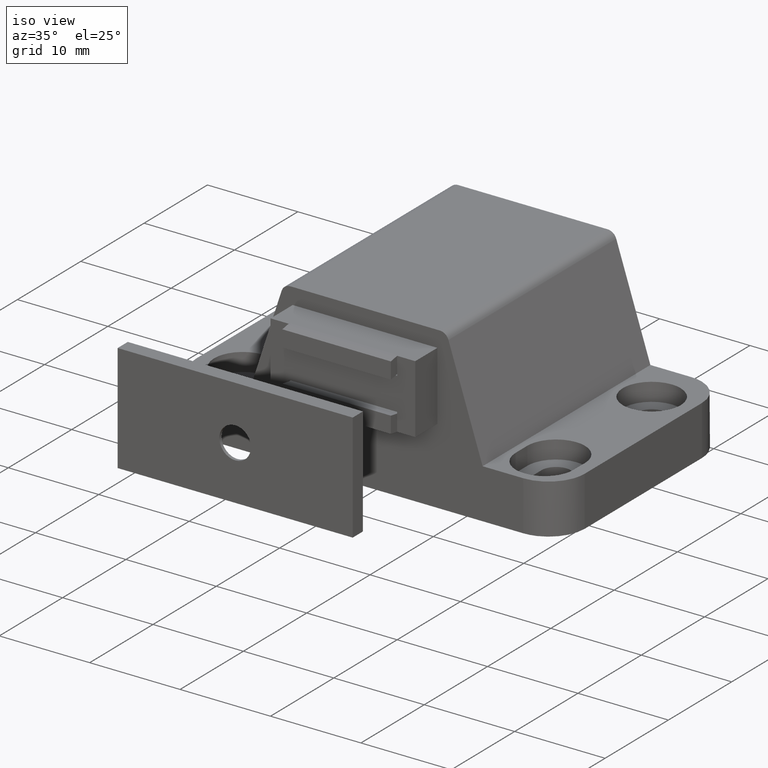
[diagram: clean part render]
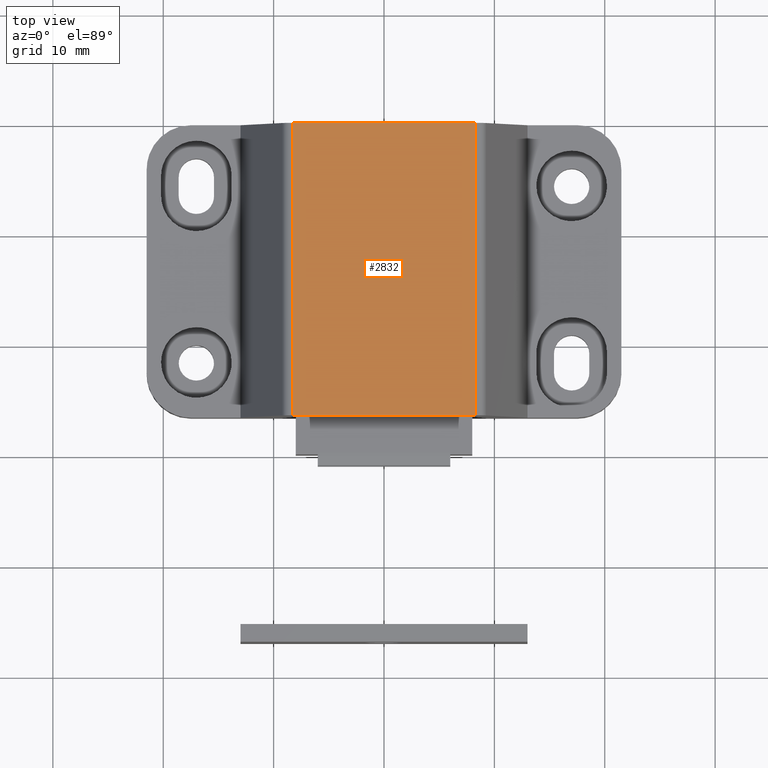
[diagram: tour spotlight — one face highlighted and labeled with its STEP entity id]
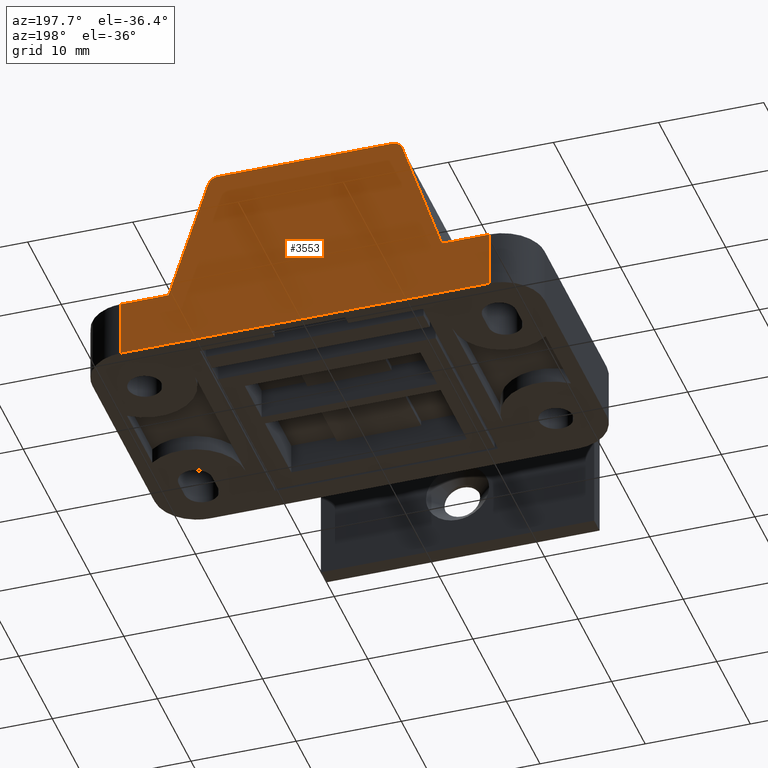
[diagram: tour spotlight — one face highlighted and labeled with its STEP entity id]
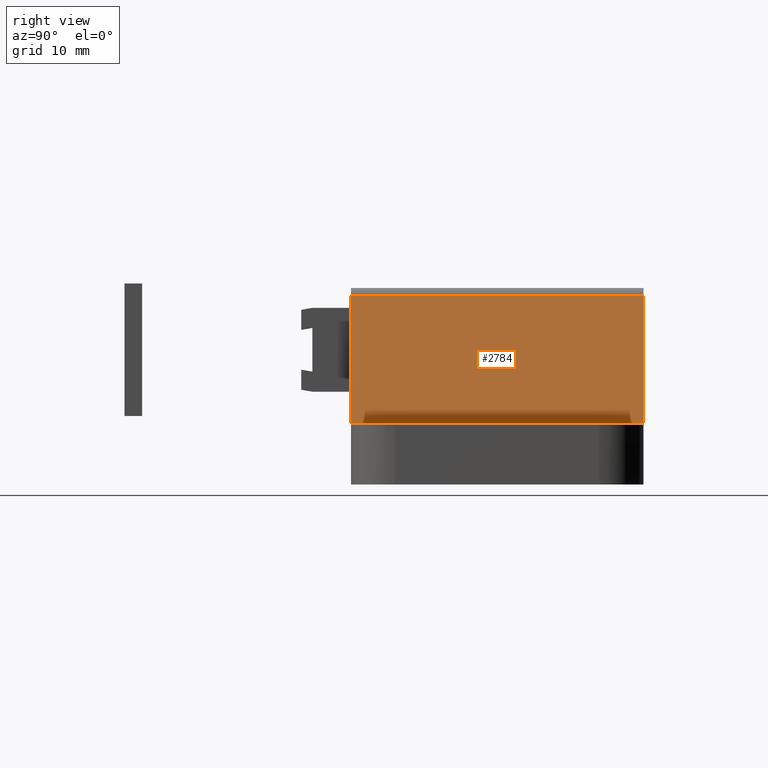
[diagram: tour spotlight — one face highlighted and labeled with its STEP entity id]
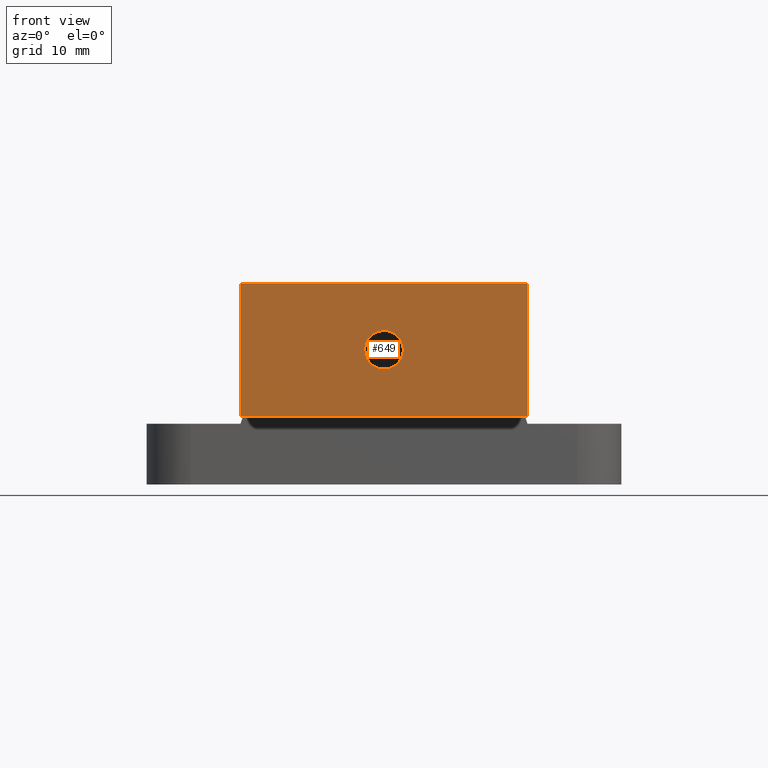
[diagram: tour spotlight — one face highlighted and labeled with its STEP entity id]
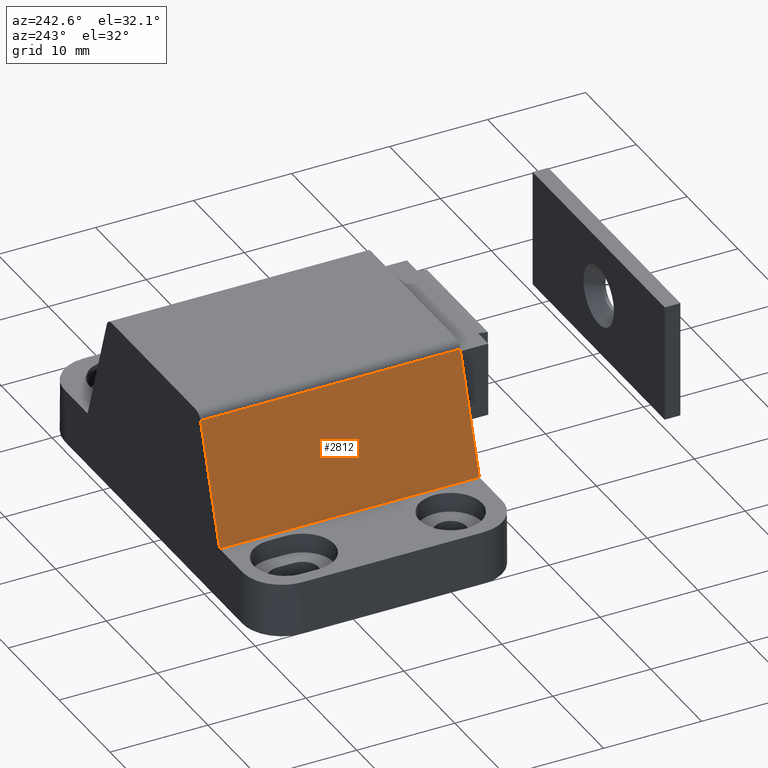
[diagram: tour spotlight — one face highlighted and labeled with its STEP entity id]
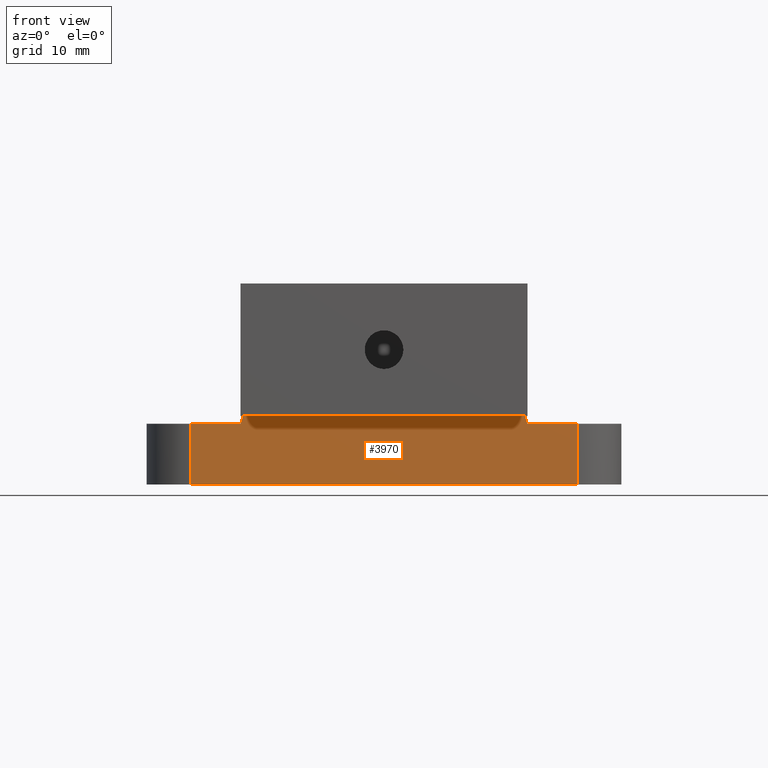
[diagram: tour spotlight — one face highlighted and labeled with its STEP entity id]
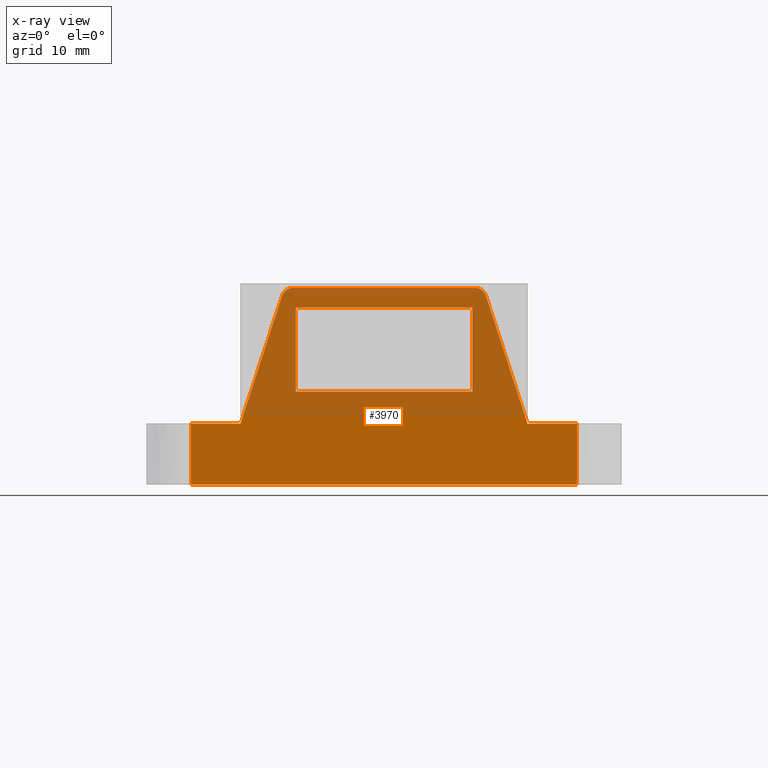
[diagram: x-ray of the same camera — body ghosted, this tour face saturated]
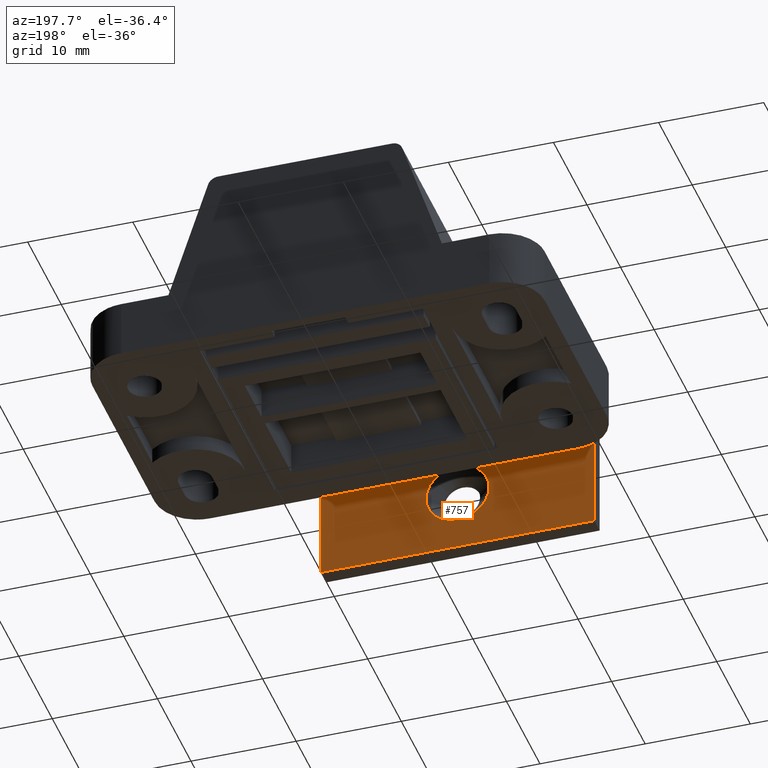
[diagram: tour spotlight — one face highlighted and labeled with its STEP entity id]
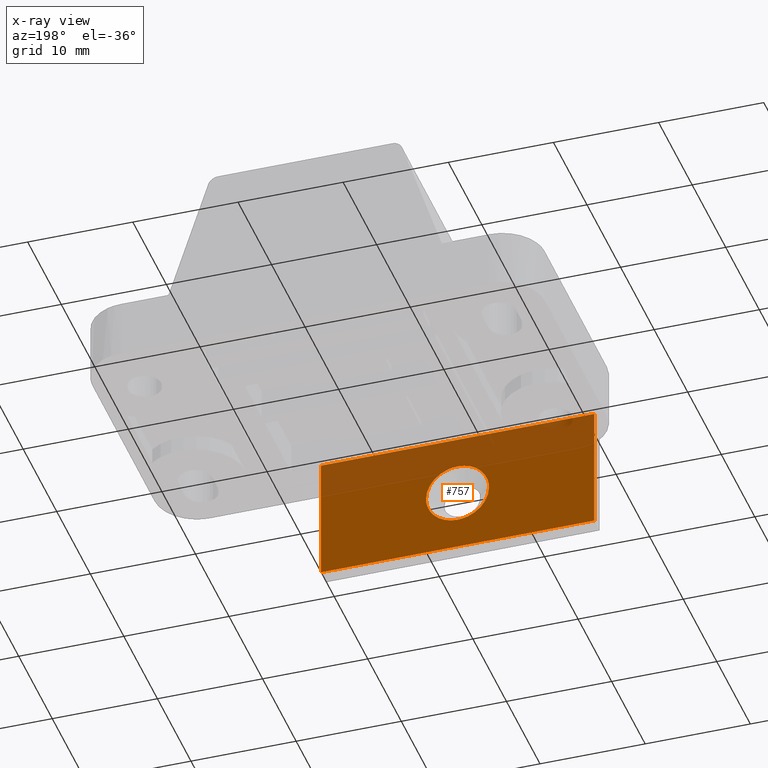
[diagram: x-ray of the same camera — body ghosted, this tour face saturated]
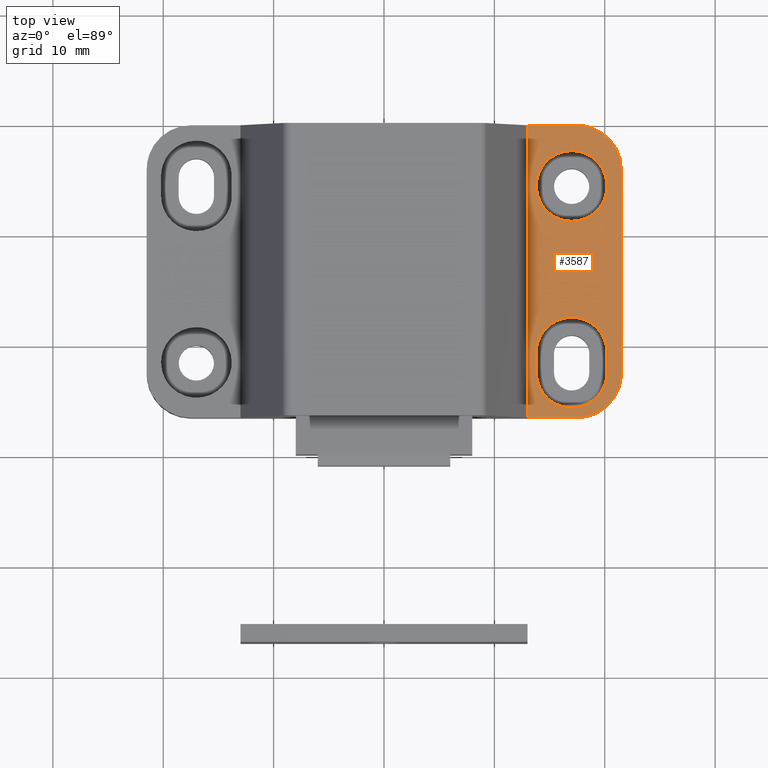
[diagram: tour spotlight — one face highlighted and labeled with its STEP entity id]
A machine part: a face-by-face anatomy tour. The part has 138 B-rep faces; the first image is the clean iso view, then the 8 largest visible faces are spotlighted one at a time (largest first), each with its STEP entity span.

Face 1 — top view, entity #2832. In plain terms, the highlighted face is a freeform B-spline surface patch.
Definition (entity closure, byte-faithful):
#1900=CARTESIAN_POINT('',(-8.273660101358519,-3.469447E-015,17.799988000000202));
#1901=VERTEX_POINT('',#1900);
#1920=CARTESIAN_POINT('',(-8.273660101358519,-26.500000000000000,17.799988000000202));
#1921=VERTEX_POINT('',#1920);
#1933=CARTESIAN_POINT('',(-8.273660101358519,-3.469447E-015,17.799988000000202));
#1934=CARTESIAN_POINT('',(-8.273660101358519,-26.500000000000000,17.799988000000202));
#1935=QUASI_UNIFORM_CURVE('',1,(#1933,#1934),.UNSPECIFIED.,.F.,.U.);
#1936=EDGE_CURVE('',#1901,#1921,#1935,.T.);
#1955=CARTESIAN_POINT('',(8.273657101360319,-3.469447E-015,17.799988000000202));
#1956=VERTEX_POINT('',#1955);
#1970=CARTESIAN_POINT('',(8.273657101360319,-26.500000000000000,17.799988000000202));
#1971=VERTEX_POINT('',#1970);
#1972=CARTESIAN_POINT('',(8.273657101360319,-26.500000000000000,17.799988000000202));
#1973=CARTESIAN_POINT('',(8.273657101360319,-3.469447E-015,17.799988000000202));
#1974=QUASI_UNIFORM_CURVE('',1,(#1972,#1973),.UNSPECIFIED.,.F.,.U.);
#1975=EDGE_CURVE('',#1971,#1956,#1974,.T.);
#2813=CARTESIAN_POINT('',(-9.100198563562412,-27.823674948637859,17.799988000000202));
#2814=CARTESIAN_POINT('',(9.100196007397846,-27.823674948637859,17.799988000000202));
#2815=CARTESIAN_POINT('',(-9.100198563562412,1.323675659423244,17.799988000000202));
#2816=CARTESIAN_POINT('',(9.100196007397846,1.323675659423244,17.799988000000202));
#2817=B_SPLINE_SURFACE_WITH_KNOTS('',1,1,((#2813,#2815),(#2814,#2816)),.UNSPECIFIED.,.F.,.F.,.U.,(2,2),(2,2),(0.0,18.200394570960260),(0.0,29.147350608061100),.UNSPECIFIED.);
#2818=CARTESIAN_POINT('',(8.273657101360319,-26.500000000000000,17.799988000000202));
#2819=CARTESIAN_POINT('',(-8.273660101358519,-26.500000000000000,17.799988000000202));
#2820=QUASI_UNIFORM_CURVE('',1,(#2818,#2819),.UNSPECIFIED.,.F.,.U.);
#2821=EDGE_CURVE('',#1971,#1921,#2820,.T.);
#2822=ORIENTED_EDGE('',*,*,#2821,.F.);
#2823=ORIENTED_EDGE('',*,*,#1975,.T.);
#2824=CARTESIAN_POINT('',(8.273657101360319,-3.469447E-015,17.799988000000202));
#2825=CARTESIAN_POINT('',(-8.273660101358519,-3.469447E-015,17.799988000000202));
#2826=QUASI_UNIFORM_CURVE('',1,(#2824,#2825),.UNSPECIFIED.,.F.,.U.);
#2827=EDGE_CURVE('',#1956,#1901,#2826,.T.);
#2828=ORIENTED_EDGE('',*,*,#2827,.T.);
#2829=ORIENTED_EDGE('',*,*,#1936,.T.);
#2830=EDGE_LOOP('',(#2822,#2823,#2828,#2829));
#2831=FACE_OUTER_BOUND('',#2830,.T.);
#2832=ADVANCED_FACE('',(#2831),#2817,.T.);

Face 2 — auxiliary view, entity #3553. In plain terms, the highlighted face is a freeform B-spline surface patch.
Definition (entity closure, byte-faithful):
#1711=CARTESIAN_POINT('',(17.500004000000001,0.0,5.500000000000000));
#1712=VERTEX_POINT('',#1711);
#1734=CARTESIAN_POINT('',(17.500004000000001,0.0,0.0));
#1735=VERTEX_POINT('',#1734);
#1750=CARTESIAN_POINT('',(17.500004000000001,0.0,5.500000000000000));
#1751=CARTESIAN_POINT('',(17.500004000000001,0.0,0.0));
#1752=QUASI_UNIFORM_CURVE('',1,(#1750,#1751),.UNSPECIFIED.,.F.,.U.);
#1753=EDGE_CURVE('',#1712,#1735,#1752,.T.);
#1772=CARTESIAN_POINT('',(-17.500000000000000,0.0,5.500000000000000));
#1773=VERTEX_POINT('',#1772);
#1790=CARTESIAN_POINT('',(-17.500000000000000,0.0,0.0));
#1791=VERTEX_POINT('',#1790);
#1792=CARTESIAN_POINT('',(-17.500000000000000,0.0,0.0));
#1793=CARTESIAN_POINT('',(-17.500000000000000,0.0,5.500000000000000));
#1794=QUASI_UNIFORM_CURVE('',1,(#1792,#1793),.UNSPECIFIED.,.F.,.U.);
#1795=EDGE_CURVE('',#1791,#1773,#1794,.T.);
#1898=CARTESIAN_POINT('',(-9.224637450134859,-3.469447E-015,17.109248540829949));
#1899=VERTEX_POINT('',#1898);
#1900=CARTESIAN_POINT('',(-8.273660101358519,-3.469447E-015,17.799988000000202));
#1901=VERTEX_POINT('',#1900);
#1902=CARTESIAN_POINT('',(-9.224637450134859,-3.469447E-015,17.109248540829949));
#1903=CARTESIAN_POINT('',(-9.194320471949535,-2.420479E-015,17.202608239243240));
#1904=CARTESIAN_POINT('',(-9.114705877584358,-9.199969E-016,17.362482097143111));
#1905=CARTESIAN_POINT('',(-8.952727037669050,2.918228E-017,17.544687487858031));
#1906=CARTESIAN_POINT('',(-8.761210169045880,2.948454E-017,17.683815730307519));
#1907=CARTESIAN_POINT('',(-8.535406400842097,-1.007282E-015,17.777318310068651));
#1908=CARTESIAN_POINT('',(-8.358728137690061,-2.560586E-015,17.800009661647628));
#1909=CARTESIAN_POINT('',(-8.273660101358519,-3.469447E-015,17.799988000000202));
#1910=B_SPLINE_CURVE_WITH_KNOTS('',3,(#1902,#1903,#1904,#1905,#1906,#1907,#1908,#1909),.UNSPECIFIED.,.F.,.U.,(4,1,1,1,1,4),(0.000000055462097,0.294468323753400,0.530055231491312,0.726345965956097,1.001195318267875,1.256401141984830),.UNSPECIFIED.);
#1911=EDGE_CURVE('',#1899,#1901,#1910,.T.);
#1955=CARTESIAN_POINT('',(8.273657101360319,-3.469447E-015,17.799988000000202));
#1956=VERTEX_POINT('',#1955);
#1957=CARTESIAN_POINT('',(9.224634332618120,-3.469447E-015,17.109248902199649));
#1958=VERTEX_POINT('',#1957);
#1959=CARTESIAN_POINT('',(8.273657101360319,-3.469447E-015,17.799988000000202));
#1960=CARTESIAN_POINT('',(8.371817895921215,-2.420398E-015,17.800033802961408));
#1961=CARTESIAN_POINT('',(8.528838578376599,-1.086951E-015,17.776668420971880));
#1962=CARTESIAN_POINT('',(8.729921375157488,-1.302246E-016,17.695678406334171));
#1963=CARTESIAN_POINT('',(8.919267565947418,1.497053E-016,17.577185127896449));
#1964=CARTESIAN_POINT('',(9.102932445317221,-6.971290E-016,17.386188600672650));
#1965=CARTESIAN_POINT('',(9.194309865503174,-2.420630E-015,17.202603703764002));
#1966=CARTESIAN_POINT('',(9.224634332618120,-3.469447E-015,17.109248902199649));
#1967=B_SPLINE_CURVE_WITH_KNOTS('',3,(#1959,#1960,#1961,#1962,#1963,#1964,#1965,#1966),.UNSPECIFIED.,.F.,.U.,(4,1,1,1,1,4),(0.000000055461155,0.294468234686953,0.471158434164631,0.647819087645986,0.961932582742674,1.256400761968306),.UNSPECIFIED.);
#1968=EDGE_CURVE('',#1956,#1958,#1967,.T.);
#2762=CARTESIAN_POINT('',(13.0,0.0,5.500000000000000));
#2763=VERTEX_POINT('',#2762);
#2764=CARTESIAN_POINT('',(13.0,0.0,5.500000000000000));
#2765=CARTESIAN_POINT('',(9.224634332618120,-3.469447E-015,17.109248902199649));
#2766=QUASI_UNIFORM_CURVE('',1,(#2764,#2765),.UNSPECIFIED.,.F.,.U.);
#2767=EDGE_CURVE('',#2763,#1958,#2766,.T.);
#2798=CARTESIAN_POINT('',(-12.999998121957359,0.0,5.500000000000000));
#2799=VERTEX_POINT('',#2798);
#2800=CARTESIAN_POINT('',(-9.224637450134859,-3.469447E-015,17.109248540829949));
#2801=CARTESIAN_POINT('',(-12.999998121957359,0.0,5.500000000000000));
#2802=QUASI_UNIFORM_CURVE('',1,(#2800,#2801),.UNSPECIFIED.,.F.,.U.);
#2803=EDGE_CURVE('',#1899,#2799,#2802,.T.);
#2824=CARTESIAN_POINT('',(8.273657101360319,-3.469447E-015,17.799988000000202));
#2825=CARTESIAN_POINT('',(-8.273660101358519,-3.469447E-015,17.799988000000202));
#2826=QUASI_UNIFORM_CURVE('',1,(#2824,#2825),.UNSPECIFIED.,.F.,.U.);
#2827=EDGE_CURVE('',#1956,#1901,#2826,.T.);
#3524=CARTESIAN_POINT('',(-19.248250131963200,0.0,-0.889109366100178));
#3525=CARTESIAN_POINT('',(-19.248250131963200,0.0,18.689097843533268));
#3526=CARTESIAN_POINT('',(19.248255070736469,0.0,-0.889109366100178));
#3527=CARTESIAN_POINT('',(19.248255070736469,0.0,18.689097843533268));
#3528=B_SPLINE_SURFACE_WITH_KNOTS('',1,1,((#3524,#3526),(#3525,#3527)),.UNSPECIFIED.,.F.,.F.,.U.,(2,2),(2,2),(0.0,19.578207209633451),(0.0,38.496505202699673),.UNSPECIFIED.);
#3529=CARTESIAN_POINT('',(-17.500000000000000,0.0,0.0));
#3530=CARTESIAN_POINT('',(17.500004000000001,0.0,0.0));
#3531=QUASI_UNIFORM_CURVE('',1,(#3529,#3530),.UNSPECIFIED.,.F.,.U.);
#3532=EDGE_CURVE('',#1791,#1735,#3531,.T.);
#3533=ORIENTED_EDGE('',*,*,#3532,.F.);
#3534=ORIENTED_EDGE('',*,*,#1795,.T.);
#3535=CARTESIAN_POINT('',(-17.500000000000000,0.0,5.500000000000000));
#3536=CARTESIAN_POINT('',(-12.999998121957359,0.0,5.500000000000000));
#3537=QUASI_UNIFORM_CURVE('',1,(#3535,#3536),.UNSPECIFIED.,.F.,.U.);
#3538=EDGE_CURVE('',#1773,#2799,#3537,.T.);
#3539=ORIENTED_EDGE('',*,*,#3538,.T.);
#3540=ORIENTED_EDGE('',*,*,#2803,.F.);
#3541=ORIENTED_EDGE('',*,*,#1911,.T.);
#3542=ORIENTED_EDGE('',*,*,#2827,.F.);
#3543=ORIENTED_EDGE('',*,*,#1968,.T.);
#3544=ORIENTED_EDGE('',*,*,#2767,.F.);
#3545=CARTESIAN_POINT('',(13.0,0.0,5.500000000000000));
#3546=CARTESIAN_POINT('',(17.500004000000001,0.0,5.500000000000000));
#3547=QUASI_UNIFORM_CURVE('',1,(#3545,#3546),.UNSPECIFIED.,.F.,.U.);
#3548=EDGE_CURVE('',#2763,#1712,#3547,.T.);
#3549=ORIENTED_EDGE('',*,*,#3548,.T.);
#3550=ORIENTED_EDGE('',*,*,#1753,.T.);
#3551=EDGE_LOOP('',(#3533,#3534,#3539,#3540,#3541,#3542,#3543,#3544,#3549,#3550));
#3552=FACE_OUTER_BOUND('',#3551,.T.);
#3553=ADVANCED_FACE('',(#3552),#3528,.T.);

Face 3 — right view, entity #2784. In plain terms, the highlighted face is a freeform B-spline surface patch.
Definition (entity closure, byte-faithful):
#1957=CARTESIAN_POINT('',(9.224634332618120,-3.469447E-015,17.109248902199649));
#1958=VERTEX_POINT('',#1957);
#1977=CARTESIAN_POINT('',(9.224634332618120,-26.500000000000000,17.109248902199649));
#1978=VERTEX_POINT('',#1977);
#1989=CARTESIAN_POINT('',(9.224634332618120,-3.469447E-015,17.109248902199649));
#1990=CARTESIAN_POINT('',(9.224634332618120,-26.500000000000000,17.109248902199649));
#1991=QUASI_UNIFORM_CURVE('',1,(#1989,#1990),.UNSPECIFIED.,.F.,.U.);
#1992=EDGE_CURVE('',#1958,#1978,#1991,.T.);
#2757=CARTESIAN_POINT('',(9.036054824849794,-27.823674948637859,17.689130862363552));
#2758=CARTESIAN_POINT('',(13.188579609031530,-27.823674948637859,4.920117728451784));
#2759=CARTESIAN_POINT('',(9.036054824849794,1.323675659423247,17.689130862363552));
#2760=CARTESIAN_POINT('',(13.188579609031530,1.323675659423247,4.920117728451784));
#2761=B_SPLINE_SURFACE_WITH_KNOTS('',1,1,((#2757,#2759),(#2758,#2760)),.UNSPECIFIED.,.F.,.F.,.U.,(2,2),(2,2),(0.0,13.427254317143721),(0.0,29.147350608061110),.UNSPECIFIED.);
#2762=CARTESIAN_POINT('',(13.0,0.0,5.500000000000000));
#2763=VERTEX_POINT('',#2762);
#2764=CARTESIAN_POINT('',(13.0,0.0,5.500000000000000));
#2765=CARTESIAN_POINT('',(9.224634332618120,-3.469447E-015,17.109248902199649));
#2766=QUASI_UNIFORM_CURVE('',1,(#2764,#2765),.UNSPECIFIED.,.F.,.U.);
#2767=EDGE_CURVE('',#2763,#1958,#2766,.T.);
#2768=ORIENTED_EDGE('',*,*,#2767,.T.);
#2769=ORIENTED_EDGE('',*,*,#1992,.T.);
#2770=CARTESIAN_POINT('',(13.0,-26.500000000000000,5.500000000000000));
#2771=VERTEX_POINT('',#2770);
#2772=CARTESIAN_POINT('',(13.0,-26.500000000000000,5.500000000000000));
#2773=CARTESIAN_POINT('',(9.224634332618120,-26.500000000000000,17.109248902199649));
#2774=QUASI_UNIFORM_CURVE('',1,(#2772,#2773),.UNSPECIFIED.,.F.,.U.);
#2775=EDGE_CURVE('',#2771,#1978,#2774,.T.);
#2776=ORIENTED_EDGE('',*,*,#2775,.F.);
#2777=CARTESIAN_POINT('',(13.0,0.0,5.500000000000000));
#2778=CARTESIAN_POINT('',(13.0,-26.500000000000000,5.500000000000000));
#2779=QUASI_UNIFORM_CURVE('',1,(#2777,#2778),.UNSPECIFIED.,.F.,.U.);
#2780=EDGE_CURVE('',#2763,#2771,#2779,.T.);
#2781=ORIENTED_EDGE('',*,*,#2780,.F.);
#2782=EDGE_LOOP('',(#2768,#2769,#2776,#2781));
#2783=FACE_OUTER_BOUND('',#2782,.T.);
#2784=ADVANCED_FACE('',(#2783),#2761,.T.);

Face 4 — front view, entity #649. In plain terms, the highlighted face is a freeform B-spline surface patch.
Definition (entity closure, byte-faithful):
#489=CARTESIAN_POINT('',(1.204620356213939,-47.016295999999997,10.930591939504840));
#490=VERTEX_POINT('',#489);
#496=CARTESIAN_POINT('',(1.749999999999870,-47.016295999999997,12.199997674963800));
#497=VERTEX_POINT('',#496);
#498=CARTESIAN_POINT('',(1.204620356213939,-47.016295999999997,10.930591939504840));
#499=CARTESIAN_POINT('',(1.328084729054072,-47.016295999999961,11.047663918013081));
#500=CARTESIAN_POINT('',(1.498834385842573,-47.016296000000082,11.265269745210579));
#501=CARTESIAN_POINT('',(1.697495494608919,-47.016295999999969,11.697076101080100));
#502=CARTESIAN_POINT('',(1.750127787672957,-47.016296000000018,12.000250910081890));
#503=CARTESIAN_POINT('',(1.749999999999870,-47.016295999999997,12.199997674963800));
#504=B_SPLINE_CURVE_WITH_KNOTS('',3,(#498,#499,#500,#501,#502,#503),.UNSPECIFIED.,.F.,.U.,(4,1,1,4),(0.000000016390924,0.510414200168995,0.821094098316851,1.420271849508569),.UNSPECIFIED.);
#505=EDGE_CURVE('',#490,#497,#504,.T.);
#507=CARTESIAN_POINT('',(0.0,-47.016295999999997,13.949997000000200));
#508=VERTEX_POINT('',#507);
#509=CARTESIAN_POINT('',(1.749999999999870,-47.016295999999997,12.199997674963800));
#510=CARTESIAN_POINT('',(1.750042831967273,-47.016296000000033,12.357487643785610));
#511=CARTESIAN_POINT('',(1.707207401377458,-47.016296000000210,12.672447114953920));
#512=CARTESIAN_POINT('',(1.542144032367187,-47.016295999999777,13.057557782069260));
#513=CARTESIAN_POINT('',(1.335845756906820,-47.016296000000338,13.342864568665741));
#514=CARTESIAN_POINT('',(1.105951959737849,-47.016295999999720,13.569977987300691));
#515=CARTESIAN_POINT('',(0.806543874185196,-47.016296000000111,13.770069262298870));
#516=CARTESIAN_POINT('',(0.422338980785648,-47.016296000000160,13.915545937153761));
#517=CARTESIAN_POINT('',(0.143172700657952,-47.016295999999564,13.950030975507950));
#518=CARTESIAN_POINT('',(0.0,-47.016295999999997,13.949997000000200));
#519=B_SPLINE_CURVE_WITH_KNOTS('',3,(#509,#510,#511,#512,#513,#514,#515,#516,#517,#518),.UNSPECIFIED.,.F.,.U.,(4,1,1,1,1,1,1,4),(0.000000061630041,0.472463010375787,0.944945155185647,1.245616226321882,1.524785644001210,1.911350051069375,2.319400027042417,2.748910439613739),.UNSPECIFIED.);
#520=EDGE_CURVE('',#497,#508,#519,.T.);
#522=CARTESIAN_POINT('',(-1.204620356213938,-47.016295999999997,13.469402060495559));
#523=VERTEX_POINT('',#522);
#524=CARTESIAN_POINT('',(0.0,-47.016295999999997,13.949997000000200));
#525=CARTESIAN_POINT('',(-0.145323864658857,-47.016296000000047,13.950034593327340));
#526=CARTESIAN_POINT('',(-0.380575764202144,-47.016296000000033,13.920507248993010));
#527=CARTESIAN_POINT('',(-0.801373441600230,-47.016296000000018,13.778190996147099));
#528=CARTESIAN_POINT('',(-1.054126930685316,-47.016295999999969,13.612447052174870));
#529=CARTESIAN_POINT('',(-1.204620356213938,-47.016295999999997,13.469402060495559));
#530=B_SPLINE_CURVE_WITH_KNOTS('',3,(#524,#525,#526,#527,#528,#529),.UNSPECIFIED.,.F.,.U.,(4,1,1,4),(0.000000013276436,0.435961911730074,0.705836242439908,1.328639570619396),.UNSPECIFIED.);
#531=EDGE_CURVE('',#508,#523,#530,.T.);
#567=CARTESIAN_POINT('',(-1.749999999999870,-47.016295999999997,12.199996325036601));
#568=VERTEX_POINT('',#567);
#569=CARTESIAN_POINT('',(-1.204620356213938,-47.016295999999997,13.469402060495559));
#570=CARTESIAN_POINT('',(-1.301210235997692,-47.016295999999990,13.377758062511230));
#571=CARTESIAN_POINT('',(-1.497306972234060,-47.016295999999990,13.143786879543899));
#572=CARTESIAN_POINT('',(-1.700002533206614,-47.016296000000089,12.710383163057500));
#573=CARTESIAN_POINT('',(-1.750069648986832,-47.016295999999961,12.370139009644941));
#574=CARTESIAN_POINT('',(-1.749999999999870,-47.016295999999997,12.199996325036601));
#575=B_SPLINE_CURVE_WITH_KNOTS('',3,(#569,#570,#571,#572,#573,#574),.UNSPECIFIED.,.F.,.U.,(4,1,1,4),(0.000000016390997,0.399452463349434,0.909857665713324,1.420271849508572),.UNSPECIFIED.);
#576=EDGE_CURVE('',#523,#568,#575,.T.);
#578=CARTESIAN_POINT('',(0.0,-47.016295999999997,10.449997000000200));
#579=VERTEX_POINT('',#578);
#580=CARTESIAN_POINT('',(-1.749999999999870,-47.016295999999997,12.199996325036601));
#581=CARTESIAN_POINT('',(-1.750021237912332,-47.016295999999983,12.071142033566410));
#582=CARTESIAN_POINT('',(-1.724577545567580,-47.016296000000047,11.842080143244891));
#583=CARTESIAN_POINT('',(-1.605275937488365,-47.016295999999933,11.465328082598271));
#584=CARTESIAN_POINT('',(-1.395594887498840,-47.016296000000231,11.110552417503831));
#585=CARTESIAN_POINT('',(-1.080659895556037,-47.016295999999969,10.803304794330300));
#586=CARTESIAN_POINT('',(-0.753235367863654,-47.016296000000018,10.607074221521620));
#587=CARTESIAN_POINT('',(-0.393704308251501,-47.016296000000096,10.480925660848699));
#588=CARTESIAN_POINT('',(-0.143172683347660,-47.016295999999947,10.449958929228890));
#589=CARTESIAN_POINT('',(0.0,-47.016295999999997,10.449997000000200));
#590=B_SPLINE_CURVE_WITH_KNOTS('',3,(#580,#581,#582,#583,#584,#585,#586,#587,#588,#589),.UNSPECIFIED.,.F.,.U.,(4,1,1,1,1,1,1,4),(0.000000061622326,0.386561345418591,0.687227661835516,1.181180180898354,1.610679066059147,1.997253591508246,2.319400027041360,2.748910439613740),.UNSPECIFIED.);
#591=EDGE_CURVE('',#568,#579,#590,.T.);
#593=CARTESIAN_POINT('',(0.0,-47.016295999999997,10.449997000000200));
#594=CARTESIAN_POINT('',(0.173009735177179,-47.016296000000310,10.449923167431280));
#595=CARTESIAN_POINT('',(0.422075179974712,-47.016295999999663,10.487246332889841));
#596=CARTESIAN_POINT('',(0.837181333188431,-47.016296000000217,10.644350833097180));
#597=CARTESIAN_POINT('',(1.064141150890154,-47.016295999999862,10.797108809788471));
#598=CARTESIAN_POINT('',(1.204620356213939,-47.016295999999997,10.930591939504840));
#599=B_SPLINE_CURVE_WITH_KNOTS('',3,(#593,#594,#595,#596,#597,#598),.UNSPECIFIED.,.F.,.U.,(4,1,1,4),(0.000000013276074,0.519000388399231,0.747354582671328,1.328639570619397),.UNSPECIFIED.);
#600=EDGE_CURVE('',#579,#490,#599,.T.);
#606=CARTESIAN_POINT('',(-14.298699949606959,-47.016295999999997,18.799396976741878));
#607=CARTESIAN_POINT('',(14.298700646981301,-47.016295999999997,18.799396976741878));
#608=CARTESIAN_POINT('',(-14.298699949606959,-47.016295999999997,5.600596701393446));
#609=CARTESIAN_POINT('',(14.298700646981301,-47.016295999999997,5.600596701393446));
#610=B_SPLINE_SURFACE_WITH_KNOTS('',1,1,((#606,#608),(#607,#609)),.UNSPECIFIED.,.F.,.F.,.U.,(2,2),(2,2),(0.0,28.597400596588258),(0.0,13.198800275348431),.UNSPECIFIED.);
#611=CARTESIAN_POINT('',(-13.0,-47.016295999999997,18.199997000000199));
#612=VERTEX_POINT('',#611);
#613=CARTESIAN_POINT('',(13.0,-47.016295999999997,18.199997000000199));
#614=VERTEX_POINT('',#613);
#615=CARTESIAN_POINT('',(-13.0,-47.016295999999997,18.199997000000199));
#616=CARTESIAN_POINT('',(13.0,-47.016295999999997,18.199997000000199));
#617=QUASI_UNIFORM_CURVE('',1,(#615,#616),.UNSPECIFIED.,.F.,.U.);
#618=EDGE_CURVE('',#612,#614,#617,.T.);
#619=ORIENTED_EDGE('',*,*,#618,.F.);
#620=CARTESIAN_POINT('',(-13.0,-47.016295999999997,6.199997000000200));
#621=VERTEX_POINT('',#620);
#622=CARTESIAN_POINT('',(-13.0,-47.016295999999997,6.199997000000200));
#623=CARTESIAN_POINT('',(-13.0,-47.016295999999997,18.199997000000199));
#624=QUASI_UNIFORM_CURVE('',1,(#622,#623),.UNSPECIFIED.,.F.,.U.);
#625=EDGE_CURVE('',#621,#612,#624,.T.);
#626=ORIENTED_EDGE('',*,*,#625,.F.);
#627=CARTESIAN_POINT('',(13.0,-47.016295999999997,6.199997000000200));
#628=VERTEX_POINT('',#627);
#629=CARTESIAN_POINT('',(13.0,-47.016295999999997,6.199997000000200));
#630=CARTESIAN_POINT('',(-13.0,-47.016295999999997,6.199997000000200));
#631=QUASI_UNIFORM_CURVE('',1,(#629,#630),.UNSPECIFIED.,.F.,.U.);
#632=EDGE_CURVE('',#628,#621,#631,.T.);
#633=ORIENTED_EDGE('',*,*,#632,.F.);
#634=CARTESIAN_POINT('',(13.0,-47.016295999999997,18.199997000000199));
#635=CARTESIAN_POINT('',(13.0,-47.016295999999997,6.199997000000200));
#636=QUASI_UNIFORM_CURVE('',1,(#634,#635),.UNSPECIFIED.,.F.,.U.);
#637=EDGE_CURVE('',#614,#628,#636,.T.);
#638=ORIENTED_EDGE('',*,*,#637,.F.);
#639=EDGE_LOOP('',(#619,#626,#633,#638));
#640=FACE_OUTER_BOUND('',#639,.T.);
#641=ORIENTED_EDGE('',*,*,#520,.F.);
#642=ORIENTED_EDGE('',*,*,#505,.F.);
#643=ORIENTED_EDGE('',*,*,#600,.F.);
#644=ORIENTED_EDGE('',*,*,#591,.F.);
#645=ORIENTED_EDGE('',*,*,#576,.F.);
#646=ORIENTED_EDGE('',*,*,#531,.F.);
#647=EDGE_LOOP('',(#641,#642,#643,#644,#645,#646));
#648=FACE_BOUND('',#647,.T.);
#649=ADVANCED_FACE('',(#640,#648),#610,.F.);

Face 5 — auxiliary view, entity #2812. In plain terms, the highlighted face is a freeform B-spline surface patch.
Definition (entity closure, byte-faithful):
#1898=CARTESIAN_POINT('',(-9.224637450134859,-3.469447E-015,17.109248540829949));
#1899=VERTEX_POINT('',#1898);
#1913=CARTESIAN_POINT('',(-9.224637450134859,-26.500000000000000,17.109248540829949));
#1914=VERTEX_POINT('',#1913);
#1915=CARTESIAN_POINT('',(-9.224637450134859,-26.500000000000000,17.109248540829949));
#1916=CARTESIAN_POINT('',(-9.224637450134859,-3.469447E-015,17.109248540829949));
#1917=QUASI_UNIFORM_CURVE('',1,(#1915,#1916),.UNSPECIFIED.,.F.,.U.);
#1918=EDGE_CURVE('',#1914,#1899,#1917,.T.);
#2785=CARTESIAN_POINT('',(-13.188577380197520,-27.823674948637859,4.920118057886525));
#2786=CARTESIAN_POINT('',(-9.036058090631649,-27.823674948637859,17.689130794327749));
#2787=CARTESIAN_POINT('',(-13.188577380197520,1.323675659423247,4.920118057886525));
#2788=CARTESIAN_POINT('',(-9.036058090631649,1.323675659423247,17.689130794327749));
#2789=B_SPLINE_SURFACE_WITH_KNOTS('',1,1,((#2785,#2787),(#2786,#2788)),.UNSPECIFIED.,.F.,.F.,.U.,(2,2),(2,2),(0.0,13.427252239889400),(0.0,29.147350608061110),.UNSPECIFIED.);
#2790=CARTESIAN_POINT('',(-12.999998121957359,-26.500000000000000,5.500000000000000));
#2791=VERTEX_POINT('',#2790);
#2792=CARTESIAN_POINT('',(-9.224637450134859,-26.500000000000000,17.109248540829949));
#2793=CARTESIAN_POINT('',(-12.999998121957359,-26.500000000000000,5.500000000000000));
#2794=QUASI_UNIFORM_CURVE('',1,(#2792,#2793),.UNSPECIFIED.,.F.,.U.);
#2795=EDGE_CURVE('',#1914,#2791,#2794,.T.);
#2796=ORIENTED_EDGE('',*,*,#2795,.F.);
#2797=ORIENTED_EDGE('',*,*,#1918,.T.);
#2798=CARTESIAN_POINT('',(-12.999998121957359,0.0,5.500000000000000));
#2799=VERTEX_POINT('',#2798);
#2800=CARTESIAN_POINT('',(-9.224637450134859,-3.469447E-015,17.109248540829949));
#2801=CARTESIAN_POINT('',(-12.999998121957359,0.0,5.500000000000000));
#2802=QUASI_UNIFORM_CURVE('',1,(#2800,#2801),.UNSPECIFIED.,.F.,.U.);
#2803=EDGE_CURVE('',#1899,#2799,#2802,.T.);
#2804=ORIENTED_EDGE('',*,*,#2803,.T.);
#2805=CARTESIAN_POINT('',(-12.999998121957359,0.0,5.500000000000000));
#2806=CARTESIAN_POINT('',(-12.999998121957359,-26.500000000000000,5.500000000000000));
#2807=QUASI_UNIFORM_CURVE('',1,(#2805,#2806),.UNSPECIFIED.,.F.,.U.);
#2808=EDGE_CURVE('',#2799,#2791,#2807,.T.);
#2809=ORIENTED_EDGE('',*,*,#2808,.T.);
#2810=EDGE_LOOP('',(#2796,#2797,#2804,#2809));
#2811=FACE_OUTER_BOUND('',#2810,.T.);
#2812=ADVANCED_FACE('',(#2811),#2789,.T.);

Face 6 — front view, entity #3970. An x-ray twin of the same camera follows (body ghosted, this face saturated) — the face is partly hidden behind the body. In plain terms, the highlighted face is a freeform B-spline surface patch.
Definition (entity closure, byte-faithful):
#1646=CARTESIAN_POINT('',(17.500004000000001,-26.500000000000000,5.500000000000000));
#1647=VERTEX_POINT('',#1646);
#1664=CARTESIAN_POINT('',(17.500004000000001,-26.500000000000000,0.0));
#1665=VERTEX_POINT('',#1664);
#1666=CARTESIAN_POINT('',(17.500004000000001,-26.500000000000000,0.0));
#1667=CARTESIAN_POINT('',(17.500004000000001,-26.500000000000000,5.500000000000000));
#1668=QUASI_UNIFORM_CURVE('',1,(#1666,#1667),.UNSPECIFIED.,.F.,.U.);
#1669=EDGE_CURVE('',#1665,#1647,#1668,.T.);
#1837=CARTESIAN_POINT('',(-17.500000000000000,-26.500000000000000,5.500000000000000));
#1838=VERTEX_POINT('',#1837);
#1860=CARTESIAN_POINT('',(-17.500000000000000,-26.500000000000000,0.0));
#1861=VERTEX_POINT('',#1860);
#1876=CARTESIAN_POINT('',(-17.500000000000000,-26.500000000000000,5.500000000000000));
#1877=CARTESIAN_POINT('',(-17.500000000000000,-26.500000000000000,0.0));
#1878=QUASI_UNIFORM_CURVE('',1,(#1876,#1877),.UNSPECIFIED.,.F.,.U.);
#1879=EDGE_CURVE('',#1838,#1861,#1878,.T.);
#1913=CARTESIAN_POINT('',(-9.224637450134859,-26.500000000000000,17.109248540829949));
#1914=VERTEX_POINT('',#1913);
#1920=CARTESIAN_POINT('',(-8.273660101358519,-26.500000000000000,17.799988000000202));
#1921=VERTEX_POINT('',#1920);
#1922=CARTESIAN_POINT('',(-8.273660101358519,-26.500000000000000,17.799988000000202));
#1923=CARTESIAN_POINT('',(-8.398013665038322,-26.499999999999979,17.800105426006311));
#1924=CARTESIAN_POINT('',(-8.568054607731268,-26.500000000000060,17.767837726298978));
#1925=CARTESIAN_POINT('',(-8.805252686389057,-26.499999999999950,17.655674373409600));
#1926=CARTESIAN_POINT('',(-8.952729787859436,-26.500000000000011,17.544072421840220));
#1927=CARTESIAN_POINT('',(-9.116481289435662,-26.499999999999989,17.356150747018159));
#1928=CARTESIAN_POINT('',(-9.190307938884182,-26.500000000000021,17.215077235499891));
#1929=CARTESIAN_POINT('',(-9.224637450134859,-26.500000000000000,17.109248540829949));
#1930=B_SPLINE_CURVE_WITH_KNOTS('',3,(#1922,#1923,#1924,#1925,#1926,#1927,#1928,#1929),.UNSPECIFIED.,.F.,.U.,(4,1,1,1,1,4),(0.000000055461992,0.372994775006251,0.510418256884606,0.785242620768328,0.922668867014564,1.256401141984831),.UNSPECIFIED.);
#1931=EDGE_CURVE('',#1921,#1914,#1930,.T.);
#1970=CARTESIAN_POINT('',(8.273657101360319,-26.500000000000000,17.799988000000202));
#1971=VERTEX_POINT('',#1970);
#1977=CARTESIAN_POINT('',(9.224634332618120,-26.500000000000000,17.109248902199649));
#1978=VERTEX_POINT('',#1977);
#1979=CARTESIAN_POINT('',(9.224634332618120,-26.500000000000000,17.109248902199649));
#1980=CARTESIAN_POINT('',(9.180305567638026,-26.500000000000000,17.246258448954119));
#1981=CARTESIAN_POINT('',(9.061446202509629,-26.499999999999979,17.448239902886769));
#1982=CARTESIAN_POINT('',(8.833748893748084,-26.500000000000039,17.638742636313818));
#1983=CARTESIAN_POINT('',(8.587679659209387,-26.499999999999940,17.764117024461829));
#1984=CARTESIAN_POINT('',(8.398008175212713,-26.500000000000099,17.800105823820200));
#1985=CARTESIAN_POINT('',(8.273657101360319,-26.500000000000000,17.799988000000202));
#1986=B_SPLINE_CURVE_WITH_KNOTS('',3,(#1979,#1980,#1981,#1982,#1983,#1984,#1985),.UNSPECIFIED.,.F.,.U.,(4,1,1,1,4),(0.000000055463987,0.431890094078470,0.687090152318394,0.883406155242538,1.256400761968271),.UNSPECIFIED.);
#1987=EDGE_CURVE('',#1978,#1971,#1986,.T.);
#2674=CARTESIAN_POINT('',(8.0,-26.500000000000000,8.399994000000190));
#2675=VERTEX_POINT('',#2674);
#2682=CARTESIAN_POINT('',(-8.0,-26.500000000000000,8.399994000000239));
#2683=VERTEX_POINT('',#2682);
#2689=CARTESIAN_POINT('',(8.0,-26.500000000000000,8.399994000000190));
#2690=CARTESIAN_POINT('',(-8.0,-26.500000000000000,8.399994000000239));
#2691=QUASI_UNIFORM_CURVE('',1,(#2689,#2690),.UNSPECIFIED.,.F.,.U.);
#2692=EDGE_CURVE('',#2675,#2683,#2691,.T.);
#2702=CARTESIAN_POINT('',(8.0,-26.500000000000000,16.0));
#2703=VERTEX_POINT('',#2702);
#2711=CARTESIAN_POINT('',(8.0,-26.500000000000000,16.0));
#2712=CARTESIAN_POINT('',(8.0,-26.500000000000000,8.399994000000190));
#2713=QUASI_UNIFORM_CURVE('',1,(#2711,#2712),.UNSPECIFIED.,.F.,.U.);
#2714=EDGE_CURVE('',#2703,#2675,#2713,.T.);
#2724=CARTESIAN_POINT('',(-8.0,-26.500000000000000,16.0));
#2725=VERTEX_POINT('',#2724);
#2733=CARTESIAN_POINT('',(-8.0,-26.500000000000000,16.0));
#2734=CARTESIAN_POINT('',(8.0,-26.500000000000000,16.0));
#2735=QUASI_UNIFORM_CURVE('',1,(#2733,#2734),.UNSPECIFIED.,.F.,.U.);
#2736=EDGE_CURVE('',#2725,#2703,#2735,.T.);
#2749=CARTESIAN_POINT('',(-8.0,-26.500000000000000,8.399994000000239));
#2750=CARTESIAN_POINT('',(-8.0,-26.500000000000000,16.0));
#2751=QUASI_UNIFORM_CURVE('',1,(#2749,#2750),.UNSPECIFIED.,.F.,.U.);
#2752=EDGE_CURVE('',#2683,#2725,#2751,.T.);
#2770=CARTESIAN_POINT('',(13.0,-26.500000000000000,5.500000000000000));
#2771=VERTEX_POINT('',#2770);
#2772=CARTESIAN_POINT('',(13.0,-26.500000000000000,5.500000000000000));
#2773=CARTESIAN_POINT('',(9.224634332618120,-26.500000000000000,17.109248902199649));
#2774=QUASI_UNIFORM_CURVE('',1,(#2772,#2773),.UNSPECIFIED.,.F.,.U.);
#2775=EDGE_CURVE('',#2771,#1978,#2774,.T.);
#2790=CARTESIAN_POINT('',(-12.999998121957359,-26.500000000000000,5.500000000000000));
#2791=VERTEX_POINT('',#2790);
#2792=CARTESIAN_POINT('',(-9.224637450134859,-26.500000000000000,17.109248540829949));
#2793=CARTESIAN_POINT('',(-12.999998121957359,-26.500000000000000,5.500000000000000));
#2794=QUASI_UNIFORM_CURVE('',1,(#2792,#2793),.UNSPECIFIED.,.F.,.U.);
#2795=EDGE_CURVE('',#1914,#2791,#2794,.T.);
#2818=CARTESIAN_POINT('',(8.273657101360319,-26.500000000000000,17.799988000000202));
#2819=CARTESIAN_POINT('',(-8.273660101358519,-26.500000000000000,17.799988000000202));
#2820=QUASI_UNIFORM_CURVE('',1,(#2818,#2819),.UNSPECIFIED.,.F.,.U.);
#2821=EDGE_CURVE('',#1971,#1921,#2820,.T.);
#3563=CARTESIAN_POINT('',(17.500004000000001,-26.500000000000000,5.500000000000000));
#3564=CARTESIAN_POINT('',(13.0,-26.500000000000000,5.500000000000000));
#3565=QUASI_UNIFORM_CURVE('',1,(#3563,#3564),.UNSPECIFIED.,.F.,.U.);
#3566=EDGE_CURVE('',#1647,#2771,#3565,.T.);
#3916=CARTESIAN_POINT('',(-12.999998121957359,-26.500000000000000,5.500000000000000));
#3917=CARTESIAN_POINT('',(-17.500000000000000,-26.500000000000000,5.500000000000000));
#3918=QUASI_UNIFORM_CURVE('',1,(#3916,#3917),.UNSPECIFIED.,.F.,.U.);
#3919=EDGE_CURVE('',#2791,#1838,#3918,.T.);
#3943=CARTESIAN_POINT('',(-19.248250131963200,-26.500000000000000,18.689097366100381));
#3944=CARTESIAN_POINT('',(-19.248250131963200,-26.500000000000000,-0.889109843533061));
#3945=CARTESIAN_POINT('',(19.248255070736469,-26.500000000000000,18.689097366100381));
#3946=CARTESIAN_POINT('',(19.248255070736469,-26.500000000000000,-0.889109843533061));
#3947=B_SPLINE_SURFACE_WITH_KNOTS('',1,1,((#3943,#3945),(#3944,#3946)),.UNSPECIFIED.,.F.,.F.,.U.,(2,2),(2,2),(0.0,19.578207209633440),(0.0,38.496505202699673),.UNSPECIFIED.);
#3948=ORIENTED_EDGE('',*,*,#3919,.T.);
#3949=ORIENTED_EDGE('',*,*,#1879,.T.);
#3950=CARTESIAN_POINT('',(17.500004000000001,-26.500000000000000,0.0));
#3951=CARTESIAN_POINT('',(-17.500000000000000,-26.500000000000000,0.0));
#3952=QUASI_UNIFORM_CURVE('',1,(#3950,#3951),.UNSPECIFIED.,.F.,.U.);
#3953=EDGE_CURVE('',#1665,#1861,#3952,.T.);
#3954=ORIENTED_EDGE('',*,*,#3953,.F.);
#3955=ORIENTED_EDGE('',*,*,#1669,.T.);
#3956=ORIENTED_EDGE('',*,*,#3566,.T.);
#3957=ORIENTED_EDGE('',*,*,#2775,.T.);
#3958=ORIENTED_EDGE('',*,*,#1987,.T.);
#3959=ORIENTED_EDGE('',*,*,#2821,.T.);
#3960=ORIENTED_EDGE('',*,*,#1931,.T.);
#3961=ORIENTED_EDGE('',*,*,#2795,.T.);
#3962=EDGE_LOOP('',(#3948,#3949,#3954,#3955,#3956,#3957,#3958,#3959,#3960,#3961));
#3963=FACE_OUTER_BOUND('',#3962,.T.);
#3964=ORIENTED_EDGE('',*,*,#2692,.T.);
#3965=ORIENTED_EDGE('',*,*,#2752,.T.);
#3966=ORIENTED_EDGE('',*,*,#2736,.T.);
#3967=ORIENTED_EDGE('',*,*,#2714,.T.);
#3968=EDGE_LOOP('',(#3964,#3965,#3966,#3967));
#3969=FACE_BOUND('',#3968,.T.);
#3970=ADVANCED_FACE('',(#3963,#3969),#3947,.T.);

Face 7 — auxiliary view, entity #757. An x-ray twin of the same camera follows (body ghosted, this face saturated) — the face is partly hidden behind the body. In plain terms, the highlighted face is a freeform B-spline surface patch.
Definition (entity closure, byte-faithful):
#277=CARTESIAN_POINT('',(-2.211832149803611,-45.416289936613524,10.173226249441219));
#278=VERTEX_POINT('',#277);
#284=CARTESIAN_POINT('',(-2.999999998878237,-45.416289999999996,12.199996490971349));
#285=VERTEX_POINT('',#284);
#286=CARTESIAN_POINT('',(-2.999999998878237,-45.416289999999996,12.199996490971349));
#287=CARTESIAN_POINT('',(-3.000019119583112,-45.416289993837943,12.002964737301649));
#288=CARTESIAN_POINT('',(-2.959908908508006,-45.416289981151358,11.597315675708000));
#289=CARTESIAN_POINT('',(-2.797351643525035,-45.416289964794267,11.074297153501380));
#290=CARTESIAN_POINT('',(-2.547508004022813,-45.416289949608732,10.588749222668691));
#291=CARTESIAN_POINT('',(-2.344962577055529,-45.416289941156244,10.318478545910850));
#292=CARTESIAN_POINT('',(-2.211832149803611,-45.416289936613524,10.173226249441219));
#293=B_SPLINE_CURVE_WITH_KNOTS('',3,(#286,#287,#288,#289,#290,#291,#292),.UNSPECIFIED.,.F.,.U.,(4,1,1,1,4),(0.000000012211920,0.591097572064264,1.216962608393358,1.634209251604628,2.225306811468024),.UNSPECIFIED.);
#294=EDGE_CURVE('',#285,#278,#293,.T.);
#296=CARTESIAN_POINT('',(0.0,-45.416289999999996,15.199996998878481));
#297=VERTEX_POINT('',#296);
#298=CARTESIAN_POINT('',(0.0,-45.416289999999996,15.199996998878481));
#299=CARTESIAN_POINT('',(-0.184078038238748,-45.416290000000039,15.200012081968470));
#300=CARTESIAN_POINT('',(-0.576773231573946,-45.416289999999961,15.163753268964699));
#301=CARTESIAN_POINT('',(-1.144582278613220,-45.416290000000082,14.995329813274630));
#302=CARTESIAN_POINT('',(-1.710090522394976,-45.416290000000117,14.693064342757820));
#303=CARTESIAN_POINT('',(-2.189747548293426,-45.416289999999627,14.284427076082549));
#304=CARTESIAN_POINT('',(-2.600412973347361,-45.416290000000281,13.744665759715300));
#305=CARTESIAN_POINT('',(-2.914553143360626,-45.416289999999769,13.058966965972941));
#306=CARTESIAN_POINT('',(-3.000137562947190,-45.416290000000053,12.506800315838380));
#307=CARTESIAN_POINT('',(-2.999999998878237,-45.416289999999996,12.199996490971349));
#308=B_SPLINE_CURVE_WITH_KNOTS('',3,(#298,#299,#300,#301,#302,#303,#304,#305,#306,#307),.UNSPECIFIED.,.F.,.U.,(4,1,1,1,1,1,1,4),(0.000000048511404,0.552235904998658,1.178104873615189,1.767161001775694,2.466643100021400,3.055707243560359,3.792029058360061,4.712418833764514),.UNSPECIFIED.);
#309=EDGE_CURVE('',#297,#285,#308,.T.);
#311=CARTESIAN_POINT('',(2.211832149803596,-45.416289936613538,14.226767750559180));
#312=VERTEX_POINT('',#311);
#313=CARTESIAN_POINT('',(2.211832149803596,-45.416289936613538,14.226767750559180));
#314=CARTESIAN_POINT('',(2.010635940068781,-45.416289942379422,14.446527034675560));
#315=CARTESIAN_POINT('',(1.633712867548576,-45.416289953181142,14.751101247053800));
#316=CARTESIAN_POINT('',(1.092455720225811,-45.416289968692560,15.006126755364980));
#317=CARTESIAN_POINT('',(0.582890449274022,-45.416289983295378,15.158999763433689));
#318=CARTESIAN_POINT('',(0.233171980037616,-45.416289993317960,15.200054019997919));
#319=CARTESIAN_POINT('',(0.0,-45.416289999999996,15.199996998878481));
#320=B_SPLINE_CURVE_WITH_KNOTS('',3,(#313,#314,#315,#316,#317,#318,#319),.UNSPECIFIED.,.F.,.U.,(4,1,1,1,4),(0.000000013555729,0.893806571488285,1.437859243799625,1.787611151677264,2.487111649418742),.UNSPECIFIED.);
#321=EDGE_CURVE('',#312,#297,#320,.T.);
#428=CARTESIAN_POINT('',(2.999999998878236,-45.416289999999996,12.199997509029000));
#429=VERTEX_POINT('',#428);
#430=CARTESIAN_POINT('',(2.999999998878236,-45.416289999999996,12.199997509029000));
#431=CARTESIAN_POINT('',(3.000019189678683,-45.416289993837907,12.397029533818740));
#432=CARTESIAN_POINT('',(2.959907413459863,-45.416289981151436,12.802676859991481));
#433=CARTESIAN_POINT('',(2.790440070762589,-45.416289964098070,13.347957493232910));
#434=CARTESIAN_POINT('',(2.534751022254982,-45.416289948991071,13.830990533553971));
#435=CARTESIAN_POINT('',(2.329296673669811,-45.416289940622370,14.098601573579920));
#436=CARTESIAN_POINT('',(2.211832149803596,-45.416289936613538,14.226767750559180));
#437=B_SPLINE_CURVE_WITH_KNOTS('',3,(#430,#431,#432,#433,#434,#435,#436),.UNSPECIFIED.,.F.,.U.,(4,1,1,1,4),(0.000000012213049,0.591097572065050,1.216962608393887,1.703750971692540,2.225306811468064),.UNSPECIFIED.);
#438=EDGE_CURVE('',#429,#312,#437,.T.);
#440=CARTESIAN_POINT('',(0.0,-45.416289999999996,9.199997001121920));
#441=VERTEX_POINT('',#440);
#442=CARTESIAN_POINT('',(0.0,-45.416289999999996,9.199997001121920));
#443=CARTESIAN_POINT('',(0.319087998290793,-45.416290000000089,9.199815508474424));
#444=CARTESIAN_POINT('',(0.871211884918200,-45.416289999999933,9.288961457452842));
#445=CARTESIAN_POINT('',(1.520883101933472,-45.416290000000032,9.591410416227632));
#446=CARTESIAN_POINT('',(1.938049076094150,-45.416290000000153,9.896907125477584));
#447=CARTESIAN_POINT('',(2.272448480249974,-45.416289999999847,10.223188990657370));
#448=CARTESIAN_POINT('',(2.583353146707639,-45.416289999999947,10.637010802879120));
#449=CARTESIAN_POINT('',(2.813126408445591,-45.416289999999883,11.115245201543230));
#450=CARTESIAN_POINT('',(2.964000896559336,-45.416289999999947,11.647781585124861));
#451=CARTESIAN_POINT('',(3.000035790982586,-45.416290000000053,11.991376265603821));
#452=CARTESIAN_POINT('',(2.999999998878236,-45.416289999999996,12.199997509029000));
#453=B_SPLINE_CURVE_WITH_KNOTS('',3,(#442,#443,#444,#445,#446,#447,#448,#449,#450,#451,#452),.UNSPECIFIED.,.F.,.U.,(4,1,1,1,1,1,1,1,4),(0.000000048510358,0.957209330356998,1.656712920707123,2.135331247373649,2.503472432324271,3.055707243559937,3.681579855479347,4.086560293301927,4.712418833764487),.UNSPECIFIED.);
#454=EDGE_CURVE('',#441,#429,#453,.T.);
#456=CARTESIAN_POINT('',(-2.211832149803611,-45.416289936613524,10.173226249441219));
#457=CARTESIAN_POINT('',(-2.054345206067564,-45.416289941126742,10.001274956564320));
#458=CARTESIAN_POINT('',(-1.787810805992548,-45.416289948765161,9.771171780806906));
#459=CARTESIAN_POINT('',(-1.330843428957895,-45.416289961860777,9.498760328464471));
#460=CARTESIAN_POINT('',(-0.777151072052507,-45.416289977728383,9.271996632653615));
#461=CARTESIAN_POINT('',(-0.297949677845229,-45.416289991461610,9.199867109800847));
#462=CARTESIAN_POINT('',(0.0,-45.416289999999996,9.199997001121920));
#463=B_SPLINE_CURVE_WITH_KNOTS('',3,(#456,#457,#458,#459,#460,#461,#462),.UNSPECIFIED.,.F.,.U.,(4,1,1,1,4),(0.000000013555079,0.699500511296733,1.049252419164422,1.593305091495809,2.487111649418755),.UNSPECIFIED.);
#464=EDGE_CURVE('',#278,#441,#463,.T.);
#656=CARTESIAN_POINT('',(-13.0,-45.416289999999996,18.199997000000199));
#657=VERTEX_POINT('',#656);
#663=CARTESIAN_POINT('',(-13.0,-45.416289999999996,6.199997000000200));
#664=VERTEX_POINT('',#663);
#665=CARTESIAN_POINT('',(-13.0,-45.416289999999996,6.199997000000200));
#666=CARTESIAN_POINT('',(-13.0,-45.416289999999996,18.199997000000199));
#667=QUASI_UNIFORM_CURVE('',1,(#665,#666),.UNSPECIFIED.,.F.,.U.);
#668=EDGE_CURVE('',#664,#657,#667,.T.);
#685=CARTESIAN_POINT('',(13.0,-45.416289999999996,6.199997000000200));
#686=VERTEX_POINT('',#685);
#687=CARTESIAN_POINT('',(13.0,-45.416289999999996,6.199997000000200));
#688=CARTESIAN_POINT('',(-13.0,-45.416289999999996,6.199997000000200));
#689=QUASI_UNIFORM_CURVE('',1,(#687,#688),.UNSPECIFIED.,.F.,.U.);
#690=EDGE_CURVE('',#686,#664,#689,.T.);
#707=CARTESIAN_POINT('',(13.0,-45.416289999999996,18.199997000000199));
#708=VERTEX_POINT('',#707);
#709=CARTESIAN_POINT('',(13.0,-45.416289999999996,18.199997000000199));
#710=CARTESIAN_POINT('',(13.0,-45.416289999999996,6.199997000000200));
#711=QUASI_UNIFORM_CURVE('',1,(#709,#710),.UNSPECIFIED.,.F.,.U.);
#712=EDGE_CURVE('',#708,#686,#711,.T.);
#729=CARTESIAN_POINT('',(-13.0,-45.416289999999996,18.199997000000199));
#730=CARTESIAN_POINT('',(13.0,-45.416289999999996,18.199997000000199));
#731=QUASI_UNIFORM_CURVE('',1,(#729,#730),.UNSPECIFIED.,.F.,.U.);
#732=EDGE_CURVE('',#657,#708,#731,.T.);
#738=CARTESIAN_POINT('',(-14.298699949606959,-45.416289999999996,18.799396976741878));
#739=CARTESIAN_POINT('',(14.298700646981301,-45.416289999999996,18.799396976741878));
#740=CARTESIAN_POINT('',(-14.298699949606959,-45.416289999999996,5.600596701393446));
#741=CARTESIAN_POINT('',(14.298700646981301,-45.416289999999996,5.600596701393446));
#742=B_SPLINE_SURFACE_WITH_KNOTS('',1,1,((#738,#740),(#739,#741)),.UNSPECIFIED.,.F.,.F.,.U.,(2,2),(2,2),(0.0,28.597400596588258),(0.0,13.198800275348431),.UNSPECIFIED.);
#743=ORIENTED_EDGE('',*,*,#732,.T.);
#744=ORIENTED_EDGE('',*,*,#712,.T.);
#745=ORIENTED_EDGE('',*,*,#690,.T.);
#746=ORIENTED_EDGE('',*,*,#668,.T.);
#747=EDGE_LOOP('',(#743,#744,#745,#746));
#748=FACE_OUTER_BOUND('',#747,.T.);
#749=ORIENTED_EDGE('',*,*,#454,.T.);
#750=ORIENTED_EDGE('',*,*,#438,.T.);
#751=ORIENTED_EDGE('',*,*,#321,.T.);
#752=ORIENTED_EDGE('',*,*,#309,.T.);
#753=ORIENTED_EDGE('',*,*,#294,.T.);
#754=ORIENTED_EDGE('',*,*,#464,.T.);
#755=EDGE_LOOP('',(#749,#750,#751,#752,#753,#754));
#756=FACE_BOUND('',#755,.T.);
#757=ADVANCED_FACE('',(#748,#756),#742,.T.);

Face 8 — top view, entity #3587. In plain terms, the highlighted face is a freeform B-spline surface patch.
Definition (entity closure, byte-faithful):
#1244=CARTESIAN_POINT('',(14.678806123564010,-7.702734581163522,5.499999999999999));
#1245=VERTEX_POINT('',#1244);
#1251=CARTESIAN_POINT('',(17.000004490281832,-8.700000000000074,5.499999999999999));
#1252=VERTEX_POINT('',#1251);
#1253=CARTESIAN_POINT('',(14.678806123564010,-7.702734581163522,5.499999999999999));
#1254=CARTESIAN_POINT('',(14.846373363146650,-7.879375900919643,5.499999999999989));
#1255=CARTESIAN_POINT('',(15.211647069669571,-8.185372215619738,5.500000000000010));
#1256=CARTESIAN_POINT('',(15.792231388246650,-8.484346836407166,5.500000000000005));
#1257=CARTESIAN_POINT('',(16.391328085565782,-8.660049378693028,5.499999999999996));
#1258=CARTESIAN_POINT('',(16.783582381569090,-8.700028251125799,5.499999999999999));
#1259=CARTESIAN_POINT('',(17.000004490281832,-8.700000000000074,5.499999999999999));
#1260=B_SPLINE_CURVE_WITH_KNOTS('',3,(#1253,#1254,#1255,#1256,#1257,#1258,#1259),.UNSPECIFIED.,.F.,.U.,(4,1,1,1,4),(0.000000013013647,0.730425661234376,1.420263558319017,1.947800804777168,2.597067735369222),.UNSPECIFIED.);
#1261=EDGE_CURVE('',#1245,#1252,#1260,.T.);
#1263=CARTESIAN_POINT('',(20.200004000000000,-5.500000000000110,5.500000000000000));
#1264=VERTEX_POINT('',#1263);
#1265=CARTESIAN_POINT('',(17.000004490281832,-8.700000000000074,5.499999999999999));
#1266=CARTESIAN_POINT('',(17.261809436999819,-8.700064770078500,5.499999999999985));
#1267=CARTESIAN_POINT('',(17.746105824926111,-8.640229231394891,5.500000000000020));
#1268=CARTESIAN_POINT('',(18.364335401966770,-8.414731338589350,5.500000000000015));
#1269=CARTESIAN_POINT('',(18.827811940022631,-8.140743943678416,5.499999999999990));
#1270=CARTESIAN_POINT('',(19.266128455606800,-7.785566149257187,5.500000000000012));
#1271=CARTESIAN_POINT('',(19.642187431017689,-7.344167553066169,5.499999999999995));
#1272=CARTESIAN_POINT('',(19.901870944393352,-6.872224189253663,5.499999999999996));
#1273=CARTESIAN_POINT('',(20.128343429850521,-6.285310355965016,5.500000000000014));
#1274=CARTESIAN_POINT('',(20.200199439964329,-5.840370250079433,5.499999999999957));
#1275=CARTESIAN_POINT('',(20.200004000000000,-5.500000000000110,5.500000000000000));
#1276=B_SPLINE_CURVE_WITH_KNOTS('',3,(#1265,#1266,#1267,#1268,#1269,#1270,#1271,#1272,#1273,#1274,#1275),.UNSPECIFIED.,.F.,.U.,(4,1,1,1,1,1,1,1,4),(0.000000043776310,0.785400267023290,1.452997107925853,1.963510595788107,2.395495631027194,3.141602661422956,3.691394245772475,4.005556202567735,5.026579508869247),.UNSPECIFIED.);
#1277=EDGE_CURVE('',#1252,#1264,#1276,.T.);
#1279=CARTESIAN_POINT('',(19.321201876436000,-3.297265418836695,5.500000000000000));
#1280=VERTEX_POINT('',#1279);
#1281=CARTESIAN_POINT('',(20.200004000000000,-5.500000000000110,5.500000000000000));
#1282=CARTESIAN_POINT('',(20.200015345760558,-5.310195419357075,5.500000000000002));
#1283=CARTESIAN_POINT('',(20.162764219952351,-4.892629305015285,5.499999999999997));
#1284=CARTESIAN_POINT('',(19.987644126107192,-4.294152877668124,5.500000000000012));
#1285=CARTESIAN_POINT('',(19.696479950855171,-3.743573331259318,5.499999999999988));
#1286=CARTESIAN_POINT('',(19.451867198097709,-3.434933590771570,5.500000000000012));
#1287=CARTESIAN_POINT('',(19.321201876436000,-3.297265418836695,5.500000000000000));
#1288=B_SPLINE_CURVE_WITH_KNOTS('',3,(#1281,#1282,#1283,#1284,#1285,#1286,#1287),.UNSPECIFIED.,.F.,.U.,(4,1,1,1,4),(0.000000010962095,0.569416860419719,1.252710758925653,1.860095903284625,2.429512549068291),.UNSPECIFIED.);
#1289=EDGE_CURVE('',#1264,#1280,#1288,.T.);
#1323=CARTESIAN_POINT('',(17.000003509718201,-2.300000000000147,5.500000000000000));
#1324=VERTEX_POINT('',#1323);
#1325=CARTESIAN_POINT('',(19.321201876436000,-3.297265418836695,5.500000000000000));
#1326=CARTESIAN_POINT('',(19.190858047640770,-3.159895420867882,5.500000000000002));
#1327=CARTESIAN_POINT('',(18.875145890733052,-2.881424250641499,5.500000000000007));
#1328=CARTESIAN_POINT('',(18.286962115780678,-2.539681465660616,5.499999999999988));
#1329=CARTESIAN_POINT('',(17.635741850258171,-2.339690715380966,5.500000000000026));
#1330=CARTESIAN_POINT('',(17.189370486089530,-2.299994265393600,5.499999999999973));
#1331=CARTESIAN_POINT('',(17.000003509718201,-2.300000000000147,5.500000000000000));
#1332=B_SPLINE_CURVE_WITH_KNOTS('',3,(#1325,#1326,#1327,#1328,#1329,#1330,#1331),.UNSPECIFIED.,.F.,.U.,(4,1,1,1,4),(0.000000013016492,0.568108225972915,1.257961489354873,2.028959522412256,2.597067735369202),.UNSPECIFIED.);
#1333=EDGE_CURVE('',#1280,#1324,#1332,.T.);
#1335=CARTESIAN_POINT('',(13.800003999999999,-5.500000000000110,5.500000000000000));
#1336=VERTEX_POINT('',#1335);
#1337=CARTESIAN_POINT('',(17.000003509718201,-2.300000000000147,5.500000000000000));
#1338=CARTESIAN_POINT('',(16.738197931309688,-2.299938283214794,5.500000000000001));
#1339=CARTESIAN_POINT('',(16.253908998010651,-2.359778191177681,5.500000000000004));
#1340=CARTESIAN_POINT('',(15.573832380564600,-2.607793081232571,5.500000000000000));
#1341=CARTESIAN_POINT('',(15.028648351156910,-2.953067390820029,5.499999999999997));
#1342=CARTESIAN_POINT('',(14.524286135039860,-3.433202381680279,5.499999999999958));
#1343=CARTESIAN_POINT('',(14.161708190399180,-3.968722048690540,5.500000000000108));
#1344=CARTESIAN_POINT('',(13.873856975246250,-4.688494117622176,5.499999999999877));
#1345=CARTESIAN_POINT('',(13.799881020363211,-5.185827266342105,5.500000000000074));
#1346=CARTESIAN_POINT('',(13.800003999999999,-5.500000000000110,5.500000000000000));
#1347=B_SPLINE_CURVE_WITH_KNOTS('',3,(#1337,#1338,#1339,#1340,#1341,#1342,#1343,#1344,#1345,#1346),.UNSPECIFIED.,.F.,.U.,(4,1,1,1,1,1,1,4),(0.000000043789472,0.785400267032860,1.452997107933281,2.159861889519537,2.709634681863705,3.534313084759280,4.084101015310180,5.026579508869202),.UNSPECIFIED.);
#1348=EDGE_CURVE('',#1324,#1336,#1347,.T.);
#1350=CARTESIAN_POINT('',(13.800003999999999,-5.500000000000110,5.500000000000000));
#1351=CARTESIAN_POINT('',(13.799973567806649,-5.715114259481939,5.499999999999996));
#1352=CARTESIAN_POINT('',(13.842272109282680,-6.132669012234250,5.500000000000003));
#1353=CARTESIAN_POINT('',(14.027965852877960,-6.740475579388367,5.500000000000004));
#1354=CARTESIAN_POINT('',(14.310528441496171,-7.267224636503642,5.499999999999998));
#1355=CARTESIAN_POINT('',(14.556854833421720,-7.574241877297214,5.500000000000003));
#1356=CARTESIAN_POINT('',(14.678806123564010,-7.702734581163522,5.499999999999999));
#1357=B_SPLINE_CURVE_WITH_KNOTS('',3,(#1350,#1351,#1352,#1353,#1354,#1355,#1356),.UNSPECIFIED.,.F.,.U.,(4,1,1,1,4),(0.000000010963149,0.645339795366363,1.252710758926047,1.898057884128939,2.429512549068286),.UNSPECIFIED.);
#1358=EDGE_CURVE('',#1336,#1245,#1357,.T.);
#1646=CARTESIAN_POINT('',(17.500004000000001,-26.500000000000000,5.500000000000000));
#1647=VERTEX_POINT('',#1646);
#1648=CARTESIAN_POINT('',(21.500004000000001,-22.500000000000000,5.500000000000000));
#1649=VERTEX_POINT('',#1648);
#1650=CARTESIAN_POINT('',(17.500004000000001,-26.500000000000000,5.500000000000000));
#1651=CARTESIAN_POINT('',(17.892723825742511,-26.500184840085868,5.500000000000010));
#1652=CARTESIAN_POINT('',(18.547116386737329,-26.402800386824470,5.499999999999983));
#1653=CARTESIAN_POINT('',(19.276223099489290,-26.100750261815879,5.500000000000023));
#1654=CARTESIAN_POINT('',(19.796124192930741,-25.789109890115149,5.499999999999946));
#1655=CARTESIAN_POINT('',(20.285527518490380,-25.402382405574290,5.500000000000100));
#1656=CARTESIAN_POINT('',(20.718381773563500,-24.906730077552069,5.499999999999938));
#1657=CARTESIAN_POINT('',(21.088172287868161,-24.306596611845560,5.500000000000048));
#1658=CARTESIAN_POINT('',(21.402798856046932,-23.547109535410399,5.499999999999949));
#1659=CARTESIAN_POINT('',(21.500191188223489,-22.892720540821330,5.500000000000025));
#1660=CARTESIAN_POINT('',(21.500004000000001,-22.500000000000000,5.500000000000000));
#1661=B_SPLINE_CURVE_WITH_KNOTS('',3,(#1650,#1651,#1652,#1653,#1654,#1655,#1656,#1657,#1658,#1659,#1660),.UNSPECIFIED.,.F.,.U.,(4,1,1,1,1,1,1,1,4),(0.000000032447971,1.178100774599055,1.963512797424739,2.356218858507087,2.994366988747860,3.828837537312142,4.319712302224254,5.105124809596434,6.283224731501200),.UNSPECIFIED.);
#1662=EDGE_CURVE('',#1647,#1649,#1661,.T.);
#1709=CARTESIAN_POINT('',(21.500004000000001,-4.0,5.500000000000000));
#1710=VERTEX_POINT('',#1709);
#1711=CARTESIAN_POINT('',(17.500004000000001,0.0,5.500000000000000));
#1712=VERTEX_POINT('',#1711);
#1713=CARTESIAN_POINT('',(21.500004000000001,-4.0,5.500000000000000));
#1714=CARTESIAN_POINT('',(21.500043869559480,-3.705476541172630,5.500000000000004));
#1715=CARTESIAN_POINT('',(21.431073170576710,-3.083709992900312,5.500000000000000));
#1716=CARTESIAN_POINT('',(21.114517691338030,-2.198924468789920,5.500000000000005));
#1717=CARTESIAN_POINT('',(20.652004684204499,-1.497526491734801,5.499999999999996));
#1718=CARTESIAN_POINT('',(20.079073075556039,-0.910373681397673,5.499999999999965));
#1719=CARTESIAN_POINT('',(19.497452677510761,-0.506042366102504,5.500000000000084));
#1720=CARTESIAN_POINT('',(18.822442826153850,-0.206883224645573,5.499999999999962));
#1721=CARTESIAN_POINT('',(18.187221482209250,-0.039459610552133,5.500000000000030));
#1722=CARTESIAN_POINT('',(17.729078383334429,0.000018346200425,5.499999999999995));
#1723=CARTESIAN_POINT('',(17.500004000000001,0.0,5.500000000000000));
#1724=B_SPLINE_CURVE_WITH_KNOTS('',3,(#1713,#1714,#1715,#1716,#1717,#1718,#1719,#1720,#1721,#1722,#1723),.UNSPECIFIED.,.F.,.U.,(4,1,1,1,1,1,1,1,4),(0.000000032444286,0.883572289452292,1.865333222462643,2.798000322503524,3.387036298013726,4.319712302222685,4.908771812798643,5.595999574506957,6.283224731501206),.UNSPECIFIED.);
#1725=EDGE_CURVE('',#1710,#1712,#1724,.T.);
#2762=CARTESIAN_POINT('',(13.0,0.0,5.500000000000000));
#2763=VERTEX_POINT('',#2762);
#2770=CARTESIAN_POINT('',(13.0,-26.500000000000000,5.500000000000000));
#2771=VERTEX_POINT('',#2770);
#2777=CARTESIAN_POINT('',(13.0,0.0,5.500000000000000));
#2778=CARTESIAN_POINT('',(13.0,-26.500000000000000,5.500000000000000));
#2779=QUASI_UNIFORM_CURVE('',1,(#2777,#2778),.UNSPECIFIED.,.F.,.U.);
#2780=EDGE_CURVE('',#2763,#2771,#2779,.T.);
#3336=CARTESIAN_POINT('',(20.200005000000001,-20.600005999999901,5.500000000000000));
#3337=VERTEX_POINT('',#3336);
#3338=CARTESIAN_POINT('',(17.000004509718170,-17.400005999999930,5.499999999999999));
#3339=VERTEX_POINT('',#3338);
#3340=CARTESIAN_POINT('',(20.200005000000001,-20.600005999999901,5.500000000000000));
#3341=CARTESIAN_POINT('',(20.200074802329961,-20.338200494696810,5.500000000000009));
#3342=CARTESIAN_POINT('',(20.145066073399882,-19.893176769808019,5.499999999999997));
#3343=CARTESIAN_POINT('',(19.948444883935540,-19.321691529366579,5.500000000000000));
#3344=CARTESIAN_POINT('',(19.670050227236150,-18.800758580374939,5.500000000000004));
#3345=CARTESIAN_POINT('',(19.313235039855609,-18.360512966201451,5.500000000000024));
#3346=CARTESIAN_POINT('',(18.831142156401349,-17.954884750676090,5.499999999999970));
#3347=CARTESIAN_POINT('',(18.363276942920599,-17.686031319571679,5.500000000000027));
#3348=CARTESIAN_POINT('',(17.732990310350690,-17.460520499755820,5.499999999999995));
#3349=CARTESIAN_POINT('',(17.287997655553500,-17.399903895385719,5.500000000000004));
#3350=CARTESIAN_POINT('',(17.000004509718170,-17.400005999999930,5.499999999999999));
#3351=B_SPLINE_CURVE_WITH_KNOTS('',3,(#3340,#3341,#3342,#3343,#3344,#3345,#3346,#3347,#3348,#3349,#3350),.UNSPECIFIED.,.F.,.U.,(4,1,1,1,1,1,1,1,4),(0.000000043607008,0.785400353286789,1.335186288619002,1.806428041446310,2.552547333837679,3.023798678467859,3.691394651534512,4.162638390983848,5.026580061534537),.UNSPECIFIED.);
#3352=EDGE_CURVE('',#3337,#3339,#3351,.T.);
#3354=CARTESIAN_POINT('',(13.800005000000001,-20.600005999999901,5.500000000000000));
#3355=VERTEX_POINT('',#3354);
#3356=CARTESIAN_POINT('',(17.000004509718170,-17.400005999999930,5.499999999999999));
#3357=CARTESIAN_POINT('',(16.738197909584091,-17.399933889308532,5.500000000000001));
#3358=CARTESIAN_POINT('',(16.319356045558109,-17.451715168032429,5.500000000000006));
#3359=CARTESIAN_POINT('',(15.795914835495800,-17.624661571591929,5.499999999999998));
#3360=CARTESIAN_POINT('',(15.312661504136750,-17.860462665127439,5.500000000000028));
#3361=CARTESIAN_POINT('',(14.834159256506609,-18.210819889434880,5.499999999999928));
#3362=CARTESIAN_POINT('',(14.415971518964900,-18.683817536119470,5.500000000000090));
#3363=CARTESIAN_POINT('',(14.081750619438621,-19.233670647432110,5.499999999999873));
#3364=CARTESIAN_POINT('',(13.855153119710300,-19.866967297934060,5.500000000000074));
#3365=CARTESIAN_POINT('',(13.799971319611650,-20.364388075616461,5.500000000000039));
#3366=CARTESIAN_POINT('',(13.800005000000001,-20.600005999999901,5.500000000000000));
#3367=B_SPLINE_CURVE_WITH_KNOTS('',3,(#3356,#3357,#3358,#3359,#3360,#3361,#3362,#3363,#3364,#3365,#3366),.UNSPECIFIED.,.F.,.U.,(4,1,1,1,1,1,1,1,4),(0.000000043784164,0.785400267028819,1.256645246321583,1.649348543463340,2.395495631030014,3.023798345579392,3.534313084758285,4.319720391872897,5.026579508869188),.UNSPECIFIED.);
#3368=EDGE_CURVE('',#3339,#3355,#3367,.T.);
#3390=CARTESIAN_POINT('',(20.200005000000001,-22.399994000000000,5.500000000000000));
#3391=VERTEX_POINT('',#3390);
#3392=CARTESIAN_POINT('',(20.200005000000001,-22.399994000000000,5.500000000000000));
#3393=CARTESIAN_POINT('',(20.200005000000001,-20.600005999999901,5.500000000000000));
#3394=QUASI_UNIFORM_CURVE('',1,(#3392,#3393),.UNSPECIFIED.,.F.,.U.);
#3395=EDGE_CURVE('',#3391,#3337,#3394,.T.);
#3425=CARTESIAN_POINT('',(13.800005000000001,-22.399994000000000,5.500000000000000));
#3426=VERTEX_POINT('',#3425);
#3427=CARTESIAN_POINT('',(17.000005490281829,-25.599993999999970,5.500000000000001));
#3428=VERTEX_POINT('',#3427);
#3429=CARTESIAN_POINT('',(13.800005000000001,-22.399994000000000,5.500000000000000));
#3430=CARTESIAN_POINT('',(13.799940524681540,-22.661798327602561,5.500000000000006));
#3431=CARTESIAN_POINT('',(13.863001583065961,-23.172278266598770,5.499999999999980));
#3432=CARTESIAN_POINT('',(14.119693538328111,-23.850161989173468,5.500000000000016));
#3433=CARTESIAN_POINT('',(14.442512722188230,-24.346272250046528,5.500000000000003));
#3434=CARTESIAN_POINT('',(14.777196822078229,-24.715520999310570,5.499999999999998));
#3435=CARTESIAN_POINT('',(15.148782850721011,-25.028203619446579,5.500000000000005));
#3436=CARTESIAN_POINT('',(15.612760160628749,-25.302456455318929,5.500000000000000));
#3437=CARTESIAN_POINT('',(16.240835054653711,-25.535925308422900,5.499999999999989));
#3438=CARTESIAN_POINT('',(16.712014687485450,-25.600093484301290,5.500000000000024));
#3439=CARTESIAN_POINT('',(17.000005490281829,-25.599993999999970,5.500000000000001));
#3440=B_SPLINE_CURVE_WITH_KNOTS('',3,(#3429,#3430,#3431,#3432,#3433,#3434,#3435,#3436,#3437,#3438,#3439),.UNSPECIFIED.,.F.,.U.,(4,1,1,1,1,1,1,1,4),(0.000000043614279,0.785400353292571,1.531540503084749,2.159862127231095,2.552547333840004,3.023798678469251,3.612851823282283,4.162638390984140,5.026580061534614),.UNSPECIFIED.);
#3441=EDGE_CURVE('',#3426,#3428,#3440,.T.);
#3443=CARTESIAN_POINT('',(17.000005490281829,-25.599993999999970,5.500000000000001));
#3444=CARTESIAN_POINT('',(17.209445472091190,-25.600017557756289,5.500000000000004));
#3445=CARTESIAN_POINT('',(17.615222855072439,-25.560013473774109,5.499999999999995));
#3446=CARTESIAN_POINT('',(18.245376706584779,-25.373115269594720,5.500000000000013));
#3447=CARTESIAN_POINT('',(18.766680242777419,-25.090344389284709,5.500000000000007));
#3448=CARTESIAN_POINT('',(19.235530572607640,-24.710317810785561,5.499999999999950));
#3449=CARTESIAN_POINT('',(19.584041372289452,-24.316186481483001,5.500000000000093));
#3450=CARTESIAN_POINT('',(19.918258902529619,-23.766328748036869,5.499999999999904));
#3451=CARTESIAN_POINT('',(20.144857064286729,-23.133032844547451,5.500000000000060));
#3452=CARTESIAN_POINT('',(20.200038620033599,-22.635611916708761,5.499999999999988));
#3453=CARTESIAN_POINT('',(20.200005000000001,-22.399994000000000,5.500000000000000));
#3454=B_SPLINE_CURVE_WITH_KNOTS('',3,(#3443,#3444,#3445,#3446,#3447,#3448,#3449,#3450,#3451,#3452,#3453),.UNSPECIFIED.,.F.,.U.,(4,1,1,1,1,1,1,1,4),(0.000000043778887,0.628318903212164,1.217374346989979,1.963510595789327,2.395495631028411,3.023798345578440,3.534313084757391,4.319720391872425,5.026579508869214),.UNSPECIFIED.);
#3455=EDGE_CURVE('',#3428,#3391,#3454,.T.);
#3473=CARTESIAN_POINT('',(13.800005000000001,-20.600005999999901,5.500000000000000));
#3474=CARTESIAN_POINT('',(13.800005000000001,-22.399994000000000,5.500000000000000));
#3475=QUASI_UNIFORM_CURVE('',1,(#3473,#3474),.UNSPECIFIED.,.F.,.U.);
#3476=EDGE_CURVE('',#3355,#3426,#3475,.T.);
#3515=CARTESIAN_POINT('',(21.500004000000001,-4.0,5.500000000000000));
#3516=CARTESIAN_POINT('',(21.500004000000001,-22.500000000000000,5.500000000000000));
#3517=QUASI_UNIFORM_CURVE('',1,(#3515,#3516),.UNSPECIFIED.,.F.,.U.);
#3518=EDGE_CURVE('',#1710,#1649,#3517,.T.);
#3545=CARTESIAN_POINT('',(13.0,0.0,5.500000000000000));
#3546=CARTESIAN_POINT('',(17.500004000000001,0.0,5.500000000000000));
#3547=QUASI_UNIFORM_CURVE('',1,(#3545,#3546),.UNSPECIFIED.,.F.,.U.);
#3548=EDGE_CURVE('',#2763,#1712,#3547,.T.);
#3554=CARTESIAN_POINT('',(12.575424816674660,1.323674948637859,5.500000000000000));
#3555=CARTESIAN_POINT('',(21.924579411313221,1.323674948637859,5.500000000000000));
#3556=CARTESIAN_POINT('',(12.575424816674660,-27.823675659423252,5.500000000000000));
#3557=CARTESIAN_POINT('',(21.924579411313221,-27.823675659423252,5.500000000000000));
#3558=B_SPLINE_SURFACE_WITH_KNOTS('',1,1,((#3554,#3556),(#3555,#3557)),.UNSPECIFIED.,.F.,.F.,.U.,(2,2),(2,2),(0.0,9.349154594638566),(0.0,29.147350608061110),.UNSPECIFIED.);
#3559=ORIENTED_EDGE('',*,*,#3518,.F.);
#3560=ORIENTED_EDGE('',*,*,#1725,.T.);
#3561=ORIENTED_EDGE('',*,*,#3548,.F.);
#3562=ORIENTED_EDGE('',*,*,#2780,.T.);
#3563=CARTESIAN_POINT('',(17.500004000000001,-26.500000000000000,5.500000000000000));
#3564=CARTESIAN_POINT('',(13.0,-26.500000000000000,5.500000000000000));
#3565=QUASI_UNIFORM_CURVE('',1,(#3563,#3564),.UNSPECIFIED.,.F.,.U.);
#3566=EDGE_CURVE('',#1647,#2771,#3565,.T.);
#3567=ORIENTED_EDGE('',*,*,#3566,.F.);
#3568=ORIENTED_EDGE('',*,*,#1662,.T.);
#3569=EDGE_LOOP('',(#3559,#3560,#3561,#3562,#3567,#3568));
#3570=FACE_OUTER_BOUND('',#3569,.T.);
#3571=ORIENTED_EDGE('',*,*,#3476,.F.);
#3572=ORIENTED_EDGE('',*,*,#3368,.F.);
#3573=ORIENTED_EDGE('',*,*,#3352,.F.);
#3574=ORIENTED_EDGE('',*,*,#3395,.F.);
#3575=ORIENTED_EDGE('',*,*,#3455,.F.);
#3576=ORIENTED_EDGE('',*,*,#3441,.F.);
#3577=EDGE_LOOP('',(#3571,#3572,#3573,#3574,#3575,#3576));
#3578=FACE_BOUND('',#3577,.T.);
#3579=ORIENTED_EDGE('',*,*,#1277,.F.);
#3580=ORIENTED_EDGE('',*,*,#1261,.F.);
#3581=ORIENTED_EDGE('',*,*,#1358,.F.);
#3582=ORIENTED_EDGE('',*,*,#1348,.F.);
#3583=ORIENTED_EDGE('',*,*,#1333,.F.);
#3584=ORIENTED_EDGE('',*,*,#1289,.F.);
#3585=EDGE_LOOP('',(#3579,#3580,#3581,#3582,#3583,#3584));
#3586=FACE_BOUND('',#3585,.T.);
#3587=ADVANCED_FACE('',(#3570,#3578,#3586),#3558,.F.);